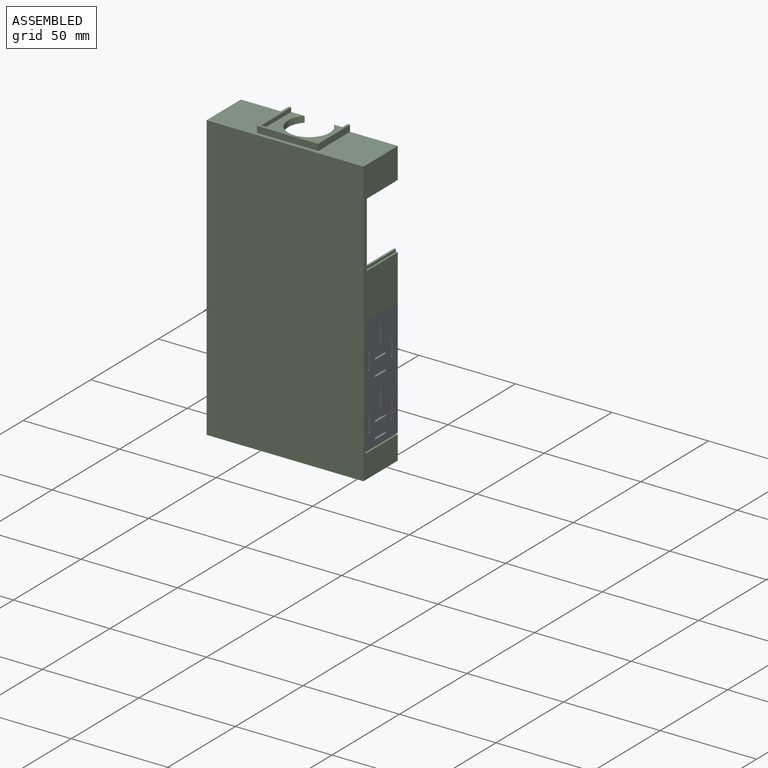
[diagram: assembled view]
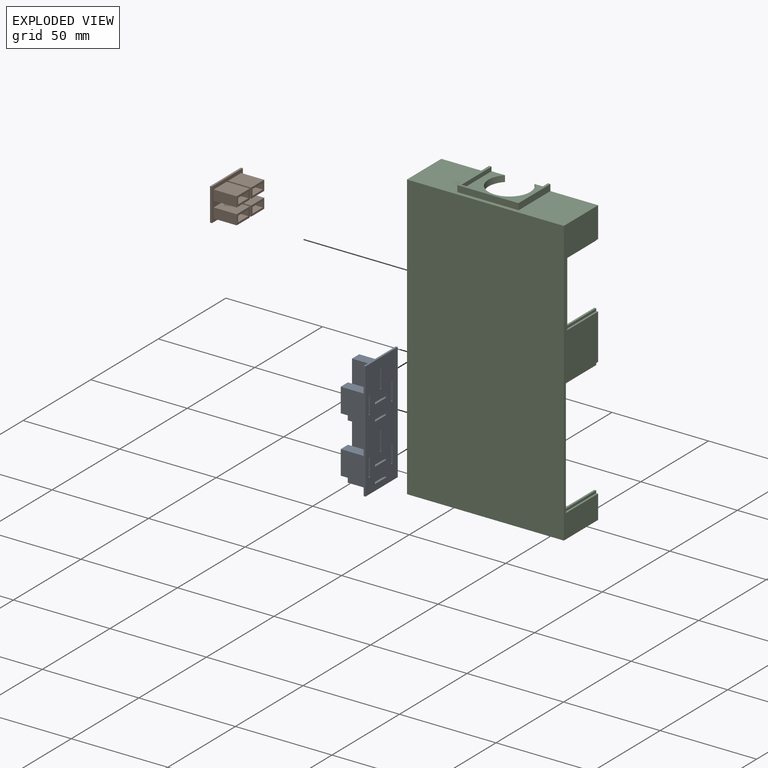
[diagram: exploded view]
GUIDED TOUR — MATED ASSEMBLY (Onshape document 6045e04a73274c1d2f5a1c67, AutoMate assembly 6045e04a73274c1d2f5a1c67_82855e615fc57292569aa869_5702accd36fd1a1ea6442523_default)

This assembly has 3 components, labeled P0..P2 below (a component is one placed occurrence of a part; the same part can appear more than once), held together by 4 mates. A mate is a constraint between two components; its type names the relative motion it leaves free:
  PLANAR — leaves sliding in the plane through the listed point (normal = the listed direction) and rotation about that normal free.
Axis/direction vectors are unit vectors and 'through' points are millimeter coordinates, both in the assembly's world frame.

MATES
  1. PLANAR "Planar 7": P1 <-> P2, direction (1.000, 0.000, 0.000) through (-189.74, -27.72, 78.71) mm
  2. PLANAR "Planar 6": P0 <-> P2, direction (0.000, 0.000, 1.000) through (-109.98, -28.23, 45.69) mm
  3. PLANAR "Planar 5": P0 <-> P2, direction (-1.000, 0.000, 0.000) through (-110.49, -26.33, 42.65) mm
  4. PLANAR "Planar 8": P1 <-> P2, direction (0.000, 0.000, 1.000) through (-190.24, -27.72, 87.16) mm

ASSEMBLY ORDER
  1. P1 — the base component [order verified]
  2. P0 [order verified]
  3. P2 [order verified]
Order-tag legend:
  [order verified] — this step's position reverses a verified removal order: the component was checked to insert without passing through the ones already placed.

Of the 3 components, 3 carry the full construction recipe — the FeatureScript program that regenerates the part's solid from scratch; the rest are supplied as boundary geometry only.
Each toured component is shown spotlighted twice — in the assembled view, then in the exploded view, where a leader line traces a displaced component back to its assembled socket (saturated green if recipe-attached, orange if geometry-only; every other component desaturated gray) — followed by its recipe or geometry summary and the mates that hold it.
NOTE — document 2 of 2 of this assembly tour. The two overview renders and the header above are repeated from document 1; the component sections below continue where the previous document stopped.
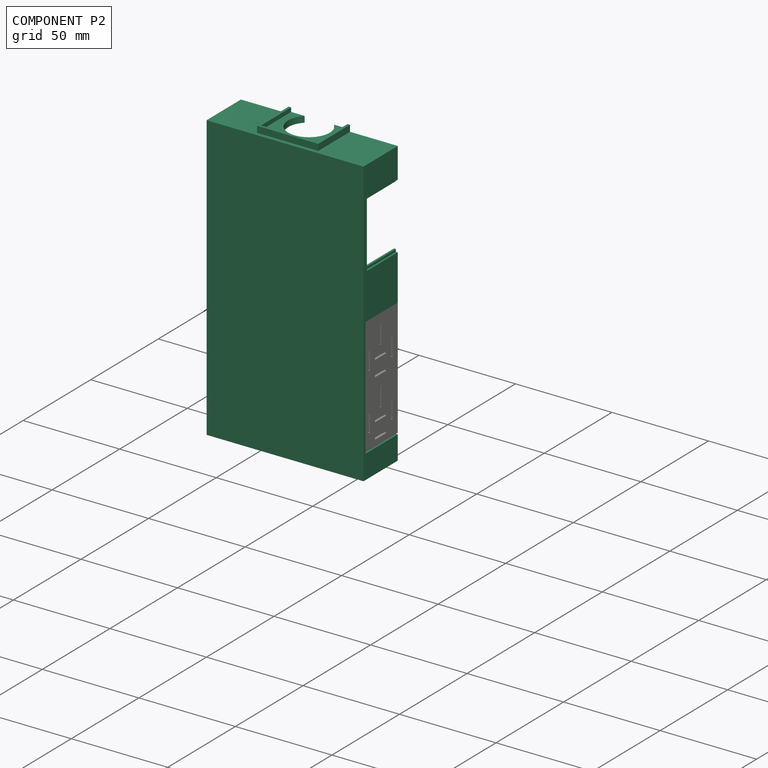
[diagram: component P2 — assembled]
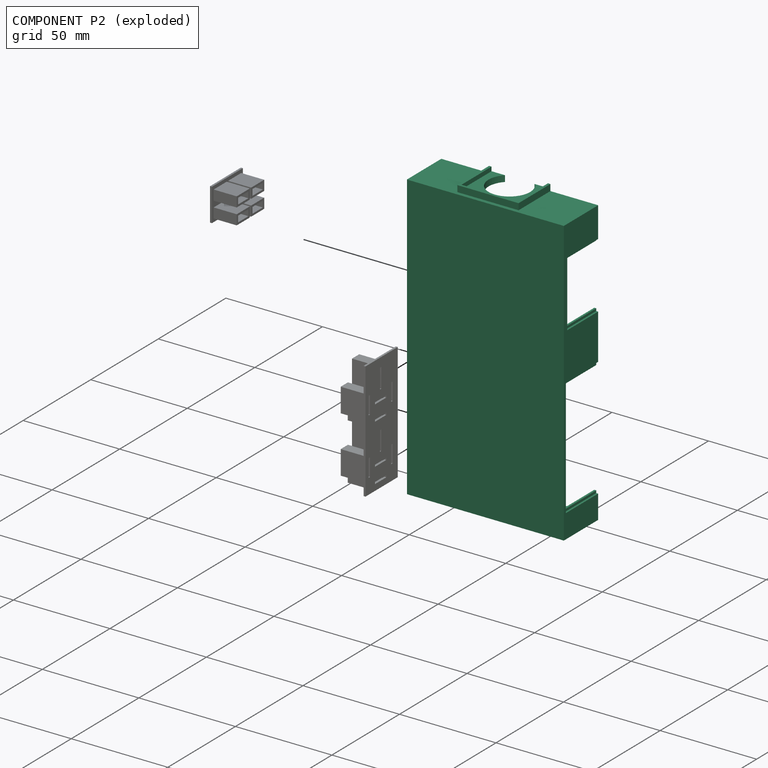
[diagram: component P2 — exploded]
COMPONENT P2 — recipe-attached (CADFS 00127335, mesh-verified: the recipe's output STEP matches this component's geometry to below the mesh-comparison resolution (tessellation chordal tolerance ~0.26 mm)).
Held by: PLANAR mate "Planar 7" to P1; PLANAR mate "Planar 6" to P0; PLANAR mate "Planar 5" to P0; PLANAR mate "Planar 8" to P1.
Construction recipe (FeatureScript — the CAD program that rebuilds this solid; sketch coordinates are in the units given by the * unit suffixes, e.g. mm):

FeatureScript 1511;
import(path : "onshape/std/geometry.fs", version : "1511.0");
import(path : "onshape/std/common.fs", version : "1511.0");
const mm = millimeter;
const VERTEX = EntityType.VERTEX;
const EDGE = EntityType.EDGE;
const FACE = EntityType.FACE;
const BODY = EntityType.BODY;
function v(x, y){return vector(x, y);}
function OD(order){return orderDisambiguation(order);}
function OSD(set){return originalSetDisambiguation(set);}
function TD(topology){return topologyDisambiguation(topology);}
function TDD(query){return trueDependencyDisambiguation(query);}
function sQuery(a, b, c) {return sketchEntityQuery(a, b, c);}

annotation { "Feature Type Name" : "Feature", "Feature Type Description" : "" }
export const myFeature = defineFeature(function(context is Context, id is Id, definition is map)
    precondition{}
    {
        {
            var Q0;
            Q0=qCreatedBy(makeId("Front.planeOp"),FACE);
            var sketch = newSketch(context, id + "F0", { "sketchPlane" : qUnion([Q0])});
            skLineSegment(sketch, "E0", {"start": v(36.47, 73.76) * mm, "end": v(-44.81, 73.76) * mm});
            skLineSegment(sketch, "E1", {"start": v(-44.81, 73.76) * mm, "end": v(-44.81, -40.54) * mm});
            skLineSegment(sketch, "E2", {"start": v(36.47, -40.54) * mm, "end": v(36.47, 73.76) * mm});
            skLineSegment(sketch, "E3", {"start": v(36.47, -40.54) * mm, "end": v(36.47, -73.56) * mm});
            skLineSegment(sketch, "E4", {"start": v(36.47, -73.56) * mm, "end": v(-44.81, -73.56) * mm});
            skLineSegment(sketch, "E5", {"start": v(-44.81, -73.56) * mm, "end": v(-44.81, -40.54) * mm});
            skSolve(sketch);
        }
        {
            var Q0;
            Q0 = qSketchRegion(id + "F0", true);
            extrude(context, id + "F1", {"entities" : qUnion([Q0]), "depth" : 25.4 * mm});
        }
        {
            var Q0;
            Q0=makeQuery(id+"F1.opExtrude","CAP_FACE",FACE,{"disambiguationData":[OSD([sQuery(id+"F0.wireOp",EDGE,"E0"),sQuery(id+"F0.wireOp",EDGE,"E1"),sQuery(id+"F0.wireOp",EDGE,"9LGxaBVT-J4aD-Pj7p-0tie-yeeoXnwk5BCI"),sQuery(id+"F0.wireOp",EDGE,"E2")])],"isStart":true});
            var sketch = newSketch(context, id + "F2", { "sketchPlane" : qUnion([Q0])});
            skLineSegment(sketch, "E6", {"start": v(-34.44, 71.73) * mm, "end": v(-34.44, -71.53) * mm});
            skLineSegment(sketch, "E7", {"start": v(-34.44, -71.53) * mm, "end": v(42.78, -71.53) * mm});
            skLineSegment(sketch, "E8", {"start": v(42.78, -71.53) * mm, "end": v(42.78, 71.73) * mm});
            skLineSegment(sketch, "E9", {"start": v(42.78, 71.73) * mm, "end": v(-34.44, 71.73) * mm});
            skSolve(sketch);
        }
        {
            var Q0;
            Q0 = qSketchRegion(id + "F2", true);
            extrude(context, id + "F3", {"entities" : qUnion([Q0]), "operationType" : NewBodyOperationType.REMOVE, "oppositeDirection" : true, "depth" : 24.13 * mm});
        }
        {
            var Q0;
            Q0=makeQuery(id+"F1.opExtrude","SWEPT_FACE",FACE,{"disambiguationData":[OSD([sQuery(id+"F0.wireOp",EDGE,"E2")])]});
            var sketch = newSketch(context, id + "F4", { "sketchPlane" : qUnion([Q0])});
            skLineSegment(sketch, "E10", {"start": v(-25.4, 20.55) * mm, "end": v(-25.4, -0.03) * mm});
            skLineSegment(sketch, "E11", {"start": v(-13.14, -8) * mm, "end": v(-13.14, -14.85) * mm});
            skLineSegment(sketch, "E12", {"start": v(-13.14, -14.85) * mm, "end": v(-12.26, -14.85) * mm});
            skLineSegment(sketch, "E13", {"start": v(-12.26, -14.85) * mm, "end": v(-12.26, -8) * mm});
            skLineSegment(sketch, "E14", {"start": v(-12.26, -8) * mm, "end": v(-13.14, -8) * mm});
            skLineSegment(sketch, "E15", {"start": v(-16.13, -19.42) * mm, "end": v(-16.13, -20.31) * mm});
            skLineSegment(sketch, "E16", {"start": v(-16.13, -20.31) * mm, "end": v(-9.27, -20.31) * mm});
            skLineSegment(sketch, "E17", {"start": v(-9.27, -20.31) * mm, "end": v(-9.27, -19.42) * mm});
            skLineSegment(sketch, "E18", {"start": v(-9.27, -19.42) * mm, "end": v(-16.13, -19.42) * mm});
            skLineSegment(sketch, "E19", {"start": v(-16.13, -27.42) * mm, "end": v(-16.13, -28.31) * mm});
            skLineSegment(sketch, "E20", {"start": v(-16.13, -28.31) * mm, "end": v(-9.27, -28.31) * mm});
            skLineSegment(sketch, "E21", {"start": v(-9.27, -28.31) * mm, "end": v(-9.27, -27.42) * mm});
            skLineSegment(sketch, "E22", {"start": v(-9.27, -27.42) * mm, "end": v(-16.13, -27.42) * mm});
            skLineSegment(sketch, "E23", {"start": v(-21.46, -16.06) * mm, "end": v(-21.46, -22.91) * mm});
            skLineSegment(sketch, "E24", {"start": v(-21.46, -22.91) * mm, "end": v(-20.57, -22.91) * mm});
            skLineSegment(sketch, "E25", {"start": v(-20.57, -22.91) * mm, "end": v(-20.57, -16.06) * mm});
            skLineSegment(sketch, "E26", {"start": v(-20.57, -16.06) * mm, "end": v(-21.46, -16.06) * mm});
            skLineSegment(sketch, "E27", {"start": v(-4.83, -16.06) * mm, "end": v(-4.83, -22.91) * mm});
            skLineSegment(sketch, "E28", {"start": v(-4.83, -22.91) * mm, "end": v(-3.94, -22.91) * mm});
            skLineSegment(sketch, "E29", {"start": v(-3.94, -22.91) * mm, "end": v(-3.94, -16.06) * mm});
            skLineSegment(sketch, "E30", {"start": v(-3.94, -16.06) * mm, "end": v(-4.83, -16.06) * mm});
            skSolve(sketch);
        }
        {
            var Q0;
            Q0 = qSketchRegion(id + "F4", true);
            extrude(context, id + "F5", {"entities" : qUnion([Q0]), "operationType" : NewBodyOperationType.REMOVE, "endBound" : BoundingType.THROUGH_ALL, "oppositeDirection" : true, "depth" : 25.4 * mm});
        }
        {
            var Q0;
            Q0=makeQuery(id+"F1.opExtrude","SWEPT_FACE",FACE,{"disambiguationData":[OSD([sQuery(id+"F0.wireOp",EDGE,"E2")])]});
            var sketch = newSketch(context, id + "F6", { "sketchPlane" : qUnion([Q0])});
            skLineSegment(sketch, "E31", {"start": v(-25.4, 20.55) * mm, "end": v(-25.4, -0.03) * mm});
            skLineSegment(sketch, "E32", {"start": v(-19.94, 28.85) * mm, "end": v(-19.94, 28.17) * mm});
            skLineSegment(sketch, "E33", {"start": v(-19.94, 28.17) * mm, "end": v(-14.94, 28.17) * mm});
            skLineSegment(sketch, "E34", {"start": v(-14.94, 28.17) * mm, "end": v(-14.94, 28.85) * mm});
            skLineSegment(sketch, "E35", {"start": v(-14.94, 28.85) * mm, "end": v(-19.94, 28.85) * mm});
            skLineSegment(sketch, "E36", {"start": v(-10.46, 28.85) * mm, "end": v(-5.46, 28.85) * mm});
            skLineSegment(sketch, "E37", {"start": v(-5.46, 28.85) * mm, "end": v(-5.46, 28.17) * mm});
            skLineSegment(sketch, "E38", {"start": v(-5.46, 28.17) * mm, "end": v(-10.46, 28.17) * mm});
            skLineSegment(sketch, "E39", {"start": v(-10.46, 28.17) * mm, "end": v(-10.46, 28.85) * mm});
            skLineSegment(sketch, "E40", {"start": v(-19.94, 37.16) * mm, "end": v(-19.94, 36.47) * mm});
            skLineSegment(sketch, "E41", {"start": v(-19.94, 36.47) * mm, "end": v(-14.94, 36.47) * mm});
            skLineSegment(sketch, "E42", {"start": v(-14.94, 36.47) * mm, "end": v(-14.94, 37.16) * mm});
            skLineSegment(sketch, "E43", {"start": v(-14.94, 37.16) * mm, "end": v(-19.94, 37.16) * mm});
            skLineSegment(sketch, "E44", {"start": v(-10.46, 37.16) * mm, "end": v(-10.46, 36.47) * mm});
            skLineSegment(sketch, "E45", {"start": v(-10.46, 36.47) * mm, "end": v(-5.46, 36.47) * mm});
            skLineSegment(sketch, "E46", {"start": v(-5.46, 36.47) * mm, "end": v(-5.46, 37.16) * mm});
            skLineSegment(sketch, "E47", {"start": v(-5.46, 37.16) * mm, "end": v(-10.46, 37.16) * mm});
            skLineSegment(sketch, "E48", {"start": v(-19.94, 45.46) * mm, "end": v(-19.94, 44.78) * mm});
            skLineSegment(sketch, "E49", {"start": v(-19.94, 44.78) * mm, "end": v(-14.94, 44.78) * mm});
            skLineSegment(sketch, "E50", {"start": v(-14.94, 44.78) * mm, "end": v(-14.94, 45.46) * mm});
            skLineSegment(sketch, "E51", {"start": v(-14.94, 45.46) * mm, "end": v(-19.94, 45.46) * mm});
            skLineSegment(sketch, "E52", {"start": v(-10.46, 45.46) * mm, "end": v(-10.46, 44.78) * mm});
            skLineSegment(sketch, "E53", {"start": v(-10.46, 44.78) * mm, "end": v(-5.46, 44.78) * mm});
            skLineSegment(sketch, "E54", {"start": v(-5.46, 44.78) * mm, "end": v(-5.46, 45.46) * mm});
            skLineSegment(sketch, "E55", {"start": v(-5.46, 45.46) * mm, "end": v(-10.46, 45.46) * mm});
            skLineSegment(sketch, "E56", {"start": v(-19.94, 53.77) * mm, "end": v(-19.94, 53.08) * mm});
            skLineSegment(sketch, "E57", {"start": v(-19.94, 53.08) * mm, "end": v(-14.94, 53.08) * mm});
            skLineSegment(sketch, "E58", {"start": v(-14.94, 53.08) * mm, "end": v(-14.94, 53.77) * mm});
            skLineSegment(sketch, "E59", {"start": v(-14.94, 53.77) * mm, "end": v(-19.94, 53.77) * mm});
            skLineSegment(sketch, "E60", {"start": v(-10.46, 53.77) * mm, "end": v(-10.46, 53.08) * mm});
            skLineSegment(sketch, "E61", {"start": v(-10.46, 53.08) * mm, "end": v(-5.46, 53.08) * mm});
            skLineSegment(sketch, "E62", {"start": v(-5.46, 53.08) * mm, "end": v(-5.46, 53.77) * mm});
            skLineSegment(sketch, "E63", {"start": v(-5.46, 53.77) * mm, "end": v(-10.46, 53.77) * mm});
            skSolve(sketch);
        }
        {
            var Q0;
            Q0 = qSketchRegion(id + "F6", true);
            extrude(context, id + "F7", {"entities" : qUnion([Q0]), "operationType" : NewBodyOperationType.REMOVE, "endBound" : BoundingType.THROUGH_ALL, "oppositeDirection" : true, "depth" : 25.4 * mm});
        }
        {
            var Q0;
            Q0=makeQuery(id+"F1.opExtrude","SWEPT_FACE",FACE,{"disambiguationData":[OSD([sQuery(id+"F0.wireOp",EDGE,"E1")])]});
            var sketch = newSketch(context, id + "F8", { "sketchPlane" : qUnion([Q0])});
            skLineSegment(sketch, "E64", {"start": v(5.46, 53.77) * mm, "end": v(5.46, 53.08) * mm});
            skLineSegment(sketch, "E65", {"start": v(5.46, 53.08) * mm, "end": v(10.46, 53.08) * mm});
            skLineSegment(sketch, "E66", {"start": v(10.46, 53.08) * mm, "end": v(10.46, 53.77) * mm});
            skLineSegment(sketch, "E67", {"start": v(10.46, 53.77) * mm, "end": v(5.46, 53.77) * mm});
            skLineSegment(sketch, "E68", {"start": v(14.94, 53.77) * mm, "end": v(14.94, 53.08) * mm});
            skLineSegment(sketch, "E69", {"start": v(14.94, 53.08) * mm, "end": v(19.94, 53.08) * mm});
            skLineSegment(sketch, "E70", {"start": v(19.94, 53.08) * mm, "end": v(19.94, 53.77) * mm});
            skLineSegment(sketch, "E71", {"start": v(19.94, 53.77) * mm, "end": v(14.94, 53.77) * mm});
            skLineSegment(sketch, "E72", {"start": v(5.46, 45.46) * mm, "end": v(5.46, 44.78) * mm});
            skLineSegment(sketch, "E73", {"start": v(5.46, 44.78) * mm, "end": v(10.46, 44.78) * mm});
            skLineSegment(sketch, "E74", {"start": v(10.46, 44.78) * mm, "end": v(10.46, 45.46) * mm});
            skLineSegment(sketch, "E75", {"start": v(10.46, 45.46) * mm, "end": v(5.46, 45.46) * mm});
            skLineSegment(sketch, "E76", {"start": v(14.94, 45.46) * mm, "end": v(14.94, 44.78) * mm});
            skLineSegment(sketch, "E77", {"start": v(14.94, 44.78) * mm, "end": v(19.94, 44.78) * mm});
            skLineSegment(sketch, "E78", {"start": v(19.94, 44.78) * mm, "end": v(19.94, 45.46) * mm});
            skLineSegment(sketch, "E79", {"start": v(19.94, 45.46) * mm, "end": v(14.94, 45.46) * mm});
            skSolve(sketch);
        }
        {
            var Q0;
            Q0 = qSketchRegion(id + "F8", true);
            extrude(context, id + "F9", {"entities" : qUnion([Q0]), "operationType" : NewBodyOperationType.ADD, "oppositeDirection" : true, "depth" : 2.03 * mm});
        }
        {
            var Q0;
            Q0=makeQuery(id+"F1.opExtrude","SWEPT_FACE",FACE,{"disambiguationData":[OSD([sQuery(id+"F0.wireOp",EDGE,"E2")])]});
            var sketch = newSketch(context, id + "F10", { "sketchPlane" : qUnion([Q0])});
            skLineSegment(sketch, "E80", {"start": v(-19.43, -15.67) * mm, "end": v(-22.6, -15.67) * mm});
            skLineSegment(sketch, "E81", {"start": v(-22.6, -15.67) * mm, "end": v(-22.6, -23.3) * mm});
            skLineSegment(sketch, "E82", {"start": v(-22.6, -23.3) * mm, "end": v(-19.43, -23.3) * mm});
            skLineSegment(sketch, "E83", {"start": v(-19.43, -23.3) * mm, "end": v(-19.43, -15.67) * mm});
            skLineSegment(sketch, "E84", {"start": v(-16.51, -18.28) * mm, "end": v(-16.51, -21.45) * mm});
            skLineSegment(sketch, "E85", {"start": v(-16.51, -21.45) * mm, "end": v(-8.9, -21.45) * mm});
            skLineSegment(sketch, "E86", {"start": v(-8.9, -21.45) * mm, "end": v(-8.9, -18.28) * mm});
            skLineSegment(sketch, "E87", {"start": v(-8.9, -18.28) * mm, "end": v(-16.51, -18.28) * mm});
            skLineSegment(sketch, "E88", {"start": v(-2.8, -15.67) * mm, "end": v(-5.97, -15.67) * mm});
            skLineSegment(sketch, "E89", {"start": v(-5.97, -15.67) * mm, "end": v(-5.97, -23.3) * mm});
            skLineSegment(sketch, "E90", {"start": v(-5.97, -23.3) * mm, "end": v(-2.8, -23.3) * mm});
            skLineSegment(sketch, "E91", {"start": v(-2.8, -23.3) * mm, "end": v(-2.8, -15.67) * mm});
            skLineSegment(sketch, "E92", {"start": v(-11.11, -7.61) * mm, "end": v(-14.29, -7.61) * mm});
            skLineSegment(sketch, "E93", {"start": v(-14.29, -7.61) * mm, "end": v(-14.29, -15.23) * mm});
            skLineSegment(sketch, "E94", {"start": v(-14.29, -15.23) * mm, "end": v(-11.11, -15.23) * mm});
            skLineSegment(sketch, "E95", {"start": v(-11.11, -15.23) * mm, "end": v(-11.11, -7.61) * mm});
            skLineSegment(sketch, "E96", {"start": v(-16.5, -26.28) * mm, "end": v(-16.5, -29.45) * mm});
            skLineSegment(sketch, "E97", {"start": v(-16.5, -29.45) * mm, "end": v(-8.89, -29.45) * mm});
            skLineSegment(sketch, "E98", {"start": v(-8.89, -29.45) * mm, "end": v(-8.89, -26.28) * mm});
            skLineSegment(sketch, "E99", {"start": v(-8.89, -26.28) * mm, "end": v(-16.5, -26.28) * mm});
            skLineSegment(sketch, "E100", {"start": v(-10.1, -6.6) * mm, "end": v(-15.3, -6.6) * mm});
            skLineSegment(sketch, "E101", {"start": v(-15.3, -6.6) * mm, "end": v(-15.3, -16.25) * mm});
            skLineSegment(sketch, "E102", {"start": v(-15.3, -16.25) * mm, "end": v(-10.1, -16.25) * mm});
            skLineSegment(sketch, "E103", {"start": v(-10.1, -16.25) * mm, "end": v(-10.1, -6.6) * mm});
            skLineSegment(sketch, "E104", {"start": v(-23.62, -14.66) * mm, "end": v(-23.62, -24.31) * mm});
            skLineSegment(sketch, "E105", {"start": v(-23.62, -24.31) * mm, "end": v(-18.41, -24.31) * mm});
            skLineSegment(sketch, "E106", {"start": v(-18.42, -24.31) * mm, "end": v(-18.42, -14.66) * mm});
            skLineSegment(sketch, "E107", {"start": v(-18.42, -14.66) * mm, "end": v(-23.62, -14.66) * mm});
            skLineSegment(sketch, "E108", {"start": v(-1.78, -14.66) * mm, "end": v(-6.98, -14.66) * mm});
            skLineSegment(sketch, "E109", {"start": v(-6.98, -14.66) * mm, "end": v(-6.98, -24.31) * mm});
            skLineSegment(sketch, "E110", {"start": v(-6.98, -24.31) * mm, "end": v(-1.78, -24.31) * mm});
            skLineSegment(sketch, "E111", {"start": v(-1.78, -24.31) * mm, "end": v(-1.78, -14.66) * mm});
            skLineSegment(sketch, "E112", {"start": v(-17.53, -17.26) * mm, "end": v(-17.53, -22.47) * mm});
            skLineSegment(sketch, "E113", {"start": v(-17.53, -22.47) * mm, "end": v(-7.87, -22.47) * mm});
            skLineSegment(sketch, "E114", {"start": v(-7.87, -22.47) * mm, "end": v(-7.87, -17.26) * mm});
            skLineSegment(sketch, "E115", {"start": v(-7.87, -17.26) * mm, "end": v(-17.53, -17.26) * mm});
            skLineSegment(sketch, "E116", {"start": v(-17.53, -25.26) * mm, "end": v(-17.53, -30.47) * mm});
            skLineSegment(sketch, "E117", {"start": v(-17.53, -30.47) * mm, "end": v(-8.25, -30.47) * mm});
            skLineSegment(sketch, "E118", {"start": v(-8.25, -30.47) * mm, "end": v(-8.25, -25.26) * mm});
            skLineSegment(sketch, "E119", {"start": v(-8.25, -25.26) * mm, "end": v(-17.53, -25.26) * mm});
            skSolve(sketch);
        }
        {
            var Q0;
            Q0 = qSketchRegion(id + "F10", true);
            extrude(context, id + "F11", {"entities" : qUnion([Q0]), "operationType" : NewBodyOperationType.ADD, "oppositeDirection" : true, "depth" : 12.95 * mm});
        }
        {
            var Q0;
            Q0=makeQuery(id+"F1.opExtrude","SWEPT_FACE",FACE,{"disambiguationData":[OSD([sQuery(id+"F0.wireOp",EDGE,"E2")])]});
            var sketch = newSketch(context, id + "F12", { "sketchPlane" : qUnion([Q0])});
            skLineSegment(sketch, "E120", {"start": v(-21.25, 30.1) * mm, "end": v(-21.25, 26.92) * mm});
            skLineSegment(sketch, "E121", {"start": v(-21.25, 26.92) * mm, "end": v(-13.63, 26.92) * mm});
            skLineSegment(sketch, "E122", {"start": v(-13.63, 26.92) * mm, "end": v(-13.63, 30.1) * mm});
            skLineSegment(sketch, "E123", {"start": v(-13.63, 30.1) * mm, "end": v(-21.25, 30.1) * mm});
            skLineSegment(sketch, "E124", {"start": v(-22, 30.86) * mm, "end": v(-22, 26.16) * mm});
            skLineSegment(sketch, "E125", {"start": v(-22, 26.16) * mm, "end": v(-12.87, 26.16) * mm});
            skLineSegment(sketch, "E126", {"start": v(-12.87, 26.16) * mm, "end": v(-12.87, 30.86) * mm});
            skLineSegment(sketch, "E127", {"start": v(-12.87, 30.86) * mm, "end": v(-22, 30.86) * mm});
            skLineSegment(sketch, "E128", {"start": v(-11.77, 30.1) * mm, "end": v(-11.77, 26.92) * mm});
            skLineSegment(sketch, "E129", {"start": v(-11.77, 26.92) * mm, "end": v(-4.15, 26.92) * mm});
            skLineSegment(sketch, "E130", {"start": v(-4.15, 26.92) * mm, "end": v(-4.15, 30.1) * mm});
            skLineSegment(sketch, "E131", {"start": v(-4.15, 30.1) * mm, "end": v(-11.77, 30.1) * mm});
            skLineSegment(sketch, "E132", {"start": v(-3.4, 30.86) * mm, "end": v(-12.53, 30.86) * mm});
            skLineSegment(sketch, "E133", {"start": v(-12.53, 30.86) * mm, "end": v(-12.53, 26.16) * mm});
            skLineSegment(sketch, "E134", {"start": v(-12.53, 26.16) * mm, "end": v(-3.4, 26.16) * mm});
            skLineSegment(sketch, "E135", {"start": v(-3.4, 26.16) * mm, "end": v(-3.4, 30.86) * mm});
            skLineSegment(sketch, "E136", {"start": v(-21.25, 38.4) * mm, "end": v(-21.25, 35.23) * mm});
            skLineSegment(sketch, "E137", {"start": v(-21.25, 35.23) * mm, "end": v(-13.63, 35.23) * mm});
            skLineSegment(sketch, "E138", {"start": v(-13.63, 35.23) * mm, "end": v(-13.63, 38.4) * mm});
            skLineSegment(sketch, "E139", {"start": v(-13.63, 38.4) * mm, "end": v(-21.25, 38.4) * mm});
            skLineSegment(sketch, "E140", {"start": v(-22, 39.17) * mm, "end": v(-22, 34.47) * mm});
            skLineSegment(sketch, "E141", {"start": v(-22, 34.47) * mm, "end": v(-12.87, 34.47) * mm});
            skLineSegment(sketch, "E142", {"start": v(-12.87, 34.47) * mm, "end": v(-12.87, 39.17) * mm});
            skLineSegment(sketch, "E143", {"start": v(-12.87, 39.17) * mm, "end": v(-22, 39.17) * mm});
            skLineSegment(sketch, "E144", {"start": v(-11.77, 38.4) * mm, "end": v(-11.77, 35.23) * mm});
            skLineSegment(sketch, "E145", {"start": v(-11.77, 35.23) * mm, "end": v(-4.15, 35.23) * mm});
            skLineSegment(sketch, "E146", {"start": v(-4.15, 35.23) * mm, "end": v(-4.15, 38.4) * mm});
            skLineSegment(sketch, "E147", {"start": v(-4.15, 38.4) * mm, "end": v(-11.77, 38.4) * mm});
            skLineSegment(sketch, "E148", {"start": v(-12.53, 39.17) * mm, "end": v(-12.53, 34.47) * mm});
            skLineSegment(sketch, "E149", {"start": v(-12.53, 39.17) * mm, "end": v(-3.4, 39.17) * mm});
            skLineSegment(sketch, "E150", {"start": v(-3.4, 39.17) * mm, "end": v(-3.4, 34.47) * mm});
            skLineSegment(sketch, "E151", {"start": v(-3.4, 34.47) * mm, "end": v(-12.53, 34.47) * mm});
            skLineSegment(sketch, "E152", {"start": v(-21.25, 46.7) * mm, "end": v(-21.25, 43.53) * mm});
            skLineSegment(sketch, "E153", {"start": v(-21.25, 43.53) * mm, "end": v(-13.63, 43.53) * mm});
            skLineSegment(sketch, "E154", {"start": v(-13.63, 43.53) * mm, "end": v(-13.63, 46.7) * mm});
            skLineSegment(sketch, "E155", {"start": v(-13.63, 46.7) * mm, "end": v(-21.25, 46.7) * mm});
            skLineSegment(sketch, "E156", {"start": v(-22, 47.47) * mm, "end": v(-22, 42.77) * mm});
            skLineSegment(sketch, "E157", {"start": v(-22, 42.77) * mm, "end": v(-12.87, 42.77) * mm});
            skLineSegment(sketch, "E158", {"start": v(-12.87, 42.77) * mm, "end": v(-12.87, 47.47) * mm});
            skLineSegment(sketch, "E159", {"start": v(-12.87, 47.47) * mm, "end": v(-22, 47.47) * mm});
            skLineSegment(sketch, "E160", {"start": v(-11.77, 43.53) * mm, "end": v(-4.15, 43.53) * mm});
            skLineSegment(sketch, "E161", {"start": v(-4.15, 46.7) * mm, "end": v(-11.77, 46.7) * mm});
            skLineSegment(sketch, "E162", {"start": v(-11.77, 46.7) * mm, "end": v(-11.77, 43.53) * mm});
            skLineSegment(sketch, "E163", {"start": v(-4.15, 46.7) * mm, "end": v(-4.15, 43.53) * mm});
            skLineSegment(sketch, "E164", {"start": v(-12.53, 47.47) * mm, "end": v(-12.53, 42.77) * mm});
            skLineSegment(sketch, "E165", {"start": v(-12.53, 42.77) * mm, "end": v(-3.4, 42.77) * mm});
            skLineSegment(sketch, "E166", {"start": v(-3.4, 42.77) * mm, "end": v(-3.4, 47.47) * mm});
            skLineSegment(sketch, "E167", {"start": v(-3.4, 47.47) * mm, "end": v(-12.53, 47.47) * mm});
            skLineSegment(sketch, "E168", {"start": v(-21.25, 55.01) * mm, "end": v(-21.25, 51.84) * mm});
            skLineSegment(sketch, "E169", {"start": v(-21.25, 51.84) * mm, "end": v(-13.63, 51.84) * mm});
            skLineSegment(sketch, "E170", {"start": v(-13.63, 51.84) * mm, "end": v(-13.63, 55.01) * mm});
            skLineSegment(sketch, "E171", {"start": v(-13.63, 55.01) * mm, "end": v(-21.25, 55.01) * mm});
            skLineSegment(sketch, "E172", {"start": v(-11.77, 55.01) * mm, "end": v(-11.77, 51.84) * mm});
            skLineSegment(sketch, "E173", {"start": v(-11.77, 51.84) * mm, "end": v(-4.15, 51.84) * mm});
            skLineSegment(sketch, "E174", {"start": v(-4.15, 51.84) * mm, "end": v(-4.15, 55.01) * mm});
            skLineSegment(sketch, "E175", {"start": v(-4.15, 55.01) * mm, "end": v(-11.77, 55.01) * mm});
            skLineSegment(sketch, "E176", {"start": v(-22, 55.78) * mm, "end": v(-22, 51.08) * mm});
            skLineSegment(sketch, "E177", {"start": v(-22, 51.08) * mm, "end": v(-12.87, 51.08) * mm});
            skLineSegment(sketch, "E178", {"start": v(-12.87, 51.08) * mm, "end": v(-12.87, 55.78) * mm});
            skLineSegment(sketch, "E179", {"start": v(-12.87, 55.78) * mm, "end": v(-22, 55.78) * mm});
            skLineSegment(sketch, "E180", {"start": v(-12.53, 55.78) * mm, "end": v(-12.53, 51.08) * mm});
            skLineSegment(sketch, "E181", {"start": v(-12.53, 51.08) * mm, "end": v(-3.4, 51.08) * mm});
            skLineSegment(sketch, "E182", {"start": v(-3.4, 51.08) * mm, "end": v(-3.4, 55.78) * mm});
            skLineSegment(sketch, "E183", {"start": v(-3.4, 55.78) * mm, "end": v(-12.53, 55.78) * mm});
            skSolve(sketch);
        }
        {
            var Q0;
            Q0 = qSketchRegion(id + "F12", true);
            extrude(context, id + "F13", {"entities" : qUnion([Q0]), "operationType" : NewBodyOperationType.ADD, "oppositeDirection" : true, "depth" : 12.95 * mm});
        }
        {
            var Q0;
            Q0=makeQuery(id+"F1.opExtrude","SWEPT_FACE",FACE,{"disambiguationData":[OSD([sQuery(id+"F0.wireOp",EDGE,"E2"),sQuery(id+"F0.wireOp",EDGE,"E3")])]});
            var sketch = newSketch(context, id + "F14", { "sketchPlane" : qUnion([Q0])});
            skLineSegment(sketch, "E184", {"start": v(-13.14, -37.16) * mm, "end": v(-12.26, -37.16) * mm});
            skLineSegment(sketch, "E185", {"start": v(-13.14, -37.16) * mm, "end": v(-13.14, -44.02) * mm});
            skLineSegment(sketch, "E186", {"start": v(-13.14, -44.02) * mm, "end": v(-12.26, -44.02) * mm});
            skLineSegment(sketch, "E187", {"start": v(-12.26, -44.02) * mm, "end": v(-12.26, -37.16) * mm});
            skLineSegment(sketch, "E188", {"start": v(-16.13, -48.59) * mm, "end": v(-16.13, -49.48) * mm});
            skLineSegment(sketch, "E189", {"start": v(-16.13, -49.48) * mm, "end": v(-9.27, -49.48) * mm});
            skLineSegment(sketch, "E190", {"start": v(-9.27, -49.48) * mm, "end": v(-9.27, -48.59) * mm});
            skLineSegment(sketch, "E191", {"start": v(-9.27, -48.59) * mm, "end": v(-16.13, -48.59) * mm});
            skLineSegment(sketch, "E192", {"start": v(-16.13, -56.59) * mm, "end": v(-16.13, -57.48) * mm});
            skLineSegment(sketch, "E193", {"start": v(-16.13, -57.48) * mm, "end": v(-9.27, -57.48) * mm});
            skLineSegment(sketch, "E194", {"start": v(-9.27, -57.48) * mm, "end": v(-9.27, -56.59) * mm});
            skLineSegment(sketch, "E195", {"start": v(-9.27, -56.59) * mm, "end": v(-16.13, -56.59) * mm});
            skLineSegment(sketch, "E196", {"start": v(-21.46, -45.29) * mm, "end": v(-21.46, -52.14) * mm});
            skLineSegment(sketch, "E197", {"start": v(-21.46, -52.14) * mm, "end": v(-20.57, -52.14) * mm});
            skLineSegment(sketch, "E198", {"start": v(-20.57, -52.14) * mm, "end": v(-20.57, -45.29) * mm});
            skLineSegment(sketch, "E199", {"start": v(-20.57, -45.29) * mm, "end": v(-21.46, -45.29) * mm});
            skLineSegment(sketch, "E200", {"start": v(-4.83, -45.29) * mm, "end": v(-4.83, -52.14) * mm});
            skLineSegment(sketch, "E201", {"start": v(-4.83, -52.14) * mm, "end": v(-3.94, -52.14) * mm});
            skLineSegment(sketch, "E202", {"start": v(-3.94, -52.14) * mm, "end": v(-3.94, -45.29) * mm});
            skLineSegment(sketch, "E203", {"start": v(-3.94, -45.29) * mm, "end": v(-4.83, -45.29) * mm});
            skSolve(sketch);
        }
        {
            var Q0;
            Q0 = qSketchRegion(id + "F14", true);
            extrude(context, id + "F15", {"entities" : qUnion([Q0]), "operationType" : NewBodyOperationType.REMOVE, "endBound" : BoundingType.THROUGH_ALL, "oppositeDirection" : true, "depth" : 25.4 * mm});
        }
        {
            var Q0;
            Q0=makeQuery(id+"F9.boolean.opBoolean","MERGE",FACE,{"derivedFrom":[makeQuery(id+"F1.opExtrude","SWEPT_FACE",FACE,{"disambiguationData":[OSD([sQuery(id+"F0.wireOp",EDGE,"E1"),sQuery(id+"F0.wireOp",EDGE,"E5")])]}),makeQuery(id+"F9.opExtrude","CAP_FACE",FACE,{"disambiguationData":[OSD([sQuery(id+"F8.wireOp",EDGE,"E64"),sQuery(id+"F8.wireOp",EDGE,"E65"),sQuery(id+"F8.wireOp",EDGE,"E66"),sQuery(id+"F8.wireOp",EDGE,"E67")])],"isStart":true}),makeQuery(id+"F9.opExtrude","CAP_FACE",FACE,{"disambiguationData":[OSD([sQuery(id+"F8.wireOp",EDGE,"E68"),sQuery(id+"F8.wireOp",EDGE,"E69"),sQuery(id+"F8.wireOp",EDGE,"E70"),sQuery(id+"F8.wireOp",EDGE,"E71")])],"isStart":true}),makeQuery(id+"F9.opExtrude","CAP_FACE",FACE,{"disambiguationData":[OSD([sQuery(id+"F8.wireOp",EDGE,"E72"),sQuery(id+"F8.wireOp",EDGE,"E73"),sQuery(id+"F8.wireOp",EDGE,"E74"),sQuery(id+"F8.wireOp",EDGE,"E75")])],"isStart":true}),makeQuery(id+"F9.opExtrude","CAP_FACE",FACE,{"disambiguationData":[OSD([sQuery(id+"F8.wireOp",EDGE,"E76"),sQuery(id+"F8.wireOp",EDGE,"E77"),sQuery(id+"F8.wireOp",EDGE,"E78"),sQuery(id+"F8.wireOp",EDGE,"E79")])],"isStart":true})]});
            var sketch = newSketch(context, id + "F16", { "sketchPlane" : qUnion([Q0])});
            skLineSegment(sketch, "E204", {"start": v(11.11, -7.61) * mm, "end": v(11.11, -15.23) * mm});
            skLineSegment(sketch, "E205", {"start": v(11.11, -15.23) * mm, "end": v(14.29, -15.23) * mm});
            skLineSegment(sketch, "E206", {"start": v(14.29, -15.23) * mm, "end": v(14.29, -7.61) * mm});
            skLineSegment(sketch, "E207", {"start": v(14.29, -7.61) * mm, "end": v(11.11, -7.61) * mm});
            skLineSegment(sketch, "E208", {"start": v(5.97, -15.67) * mm, "end": v(2.8, -15.67) * mm});
            skLineSegment(sketch, "E209", {"start": v(2.8, -15.67) * mm, "end": v(2.8, -23.3) * mm});
            skLineSegment(sketch, "E210", {"start": v(2.8, -23.3) * mm, "end": v(5.97, -23.3) * mm});
            skLineSegment(sketch, "E211", {"start": v(5.97, -23.3) * mm, "end": v(5.97, -15.67) * mm});
            skLineSegment(sketch, "E212", {"start": v(8.9, -18.28) * mm, "end": v(8.9, -21.45) * mm});
            skLineSegment(sketch, "E213", {"start": v(8.9, -21.45) * mm, "end": v(16.51, -21.45) * mm});
            skLineSegment(sketch, "E214", {"start": v(16.51, -21.45) * mm, "end": v(16.51, -18.28) * mm});
            skLineSegment(sketch, "E215", {"start": v(16.51, -18.28) * mm, "end": v(8.9, -18.28) * mm});
            skLineSegment(sketch, "E216", {"start": v(19.43, -15.67) * mm, "end": v(19.43, -23.3) * mm});
            skLineSegment(sketch, "E217", {"start": v(19.43, -23.3) * mm, "end": v(22.6, -23.3) * mm});
            skLineSegment(sketch, "E218", {"start": v(22.6, -23.3) * mm, "end": v(22.6, -15.67) * mm});
            skLineSegment(sketch, "E219", {"start": v(22.6, -15.67) * mm, "end": v(19.43, -15.67) * mm});
            skLineSegment(sketch, "E220", {"start": v(8.89, -26.28) * mm, "end": v(8.89, -29.45) * mm});
            skLineSegment(sketch, "E221", {"start": v(8.89, -29.45) * mm, "end": v(16.5, -29.45) * mm});
            skLineSegment(sketch, "E222", {"start": v(16.51, -29.45) * mm, "end": v(16.51, -26.28) * mm});
            skLineSegment(sketch, "E223", {"start": v(16.5, -26.28) * mm, "end": v(8.89, -26.28) * mm});
            skLineSegment(sketch, "E224", {"start": v(6.98, -14.66) * mm, "end": v(1.78, -14.66) * mm});
            skLineSegment(sketch, "E225", {"start": v(1.78, -14.66) * mm, "end": v(1.78, -24.31) * mm});
            skLineSegment(sketch, "E226", {"start": v(1.78, -24.31) * mm, "end": v(6.98, -24.31) * mm});
            skLineSegment(sketch, "E227", {"start": v(6.98, -24.31) * mm, "end": v(6.98, -14.66) * mm});
            skLineSegment(sketch, "E228", {"start": v(7.87, -17.26) * mm, "end": v(7.87, -22.47) * mm});
            skLineSegment(sketch, "E229", {"start": v(7.87, -22.47) * mm, "end": v(17.53, -22.47) * mm});
            skLineSegment(sketch, "E230", {"start": v(17.53, -22.47) * mm, "end": v(17.53, -17.26) * mm});
            skLineSegment(sketch, "E231", {"start": v(17.53, -17.26) * mm, "end": v(7.87, -17.26) * mm});
            skLineSegment(sketch, "E232", {"start": v(18.42, -14.66) * mm, "end": v(18.42, -24.31) * mm});
            skLineSegment(sketch, "E233", {"start": v(18.42, -24.31) * mm, "end": v(23.62, -24.31) * mm});
            skLineSegment(sketch, "E234", {"start": v(23.62, -24.31) * mm, "end": v(23.62, -14.66) * mm});
            skLineSegment(sketch, "E235", {"start": v(23.62, -14.66) * mm, "end": v(18.42, -14.66) * mm});
            skLineSegment(sketch, "E236", {"start": v(10.1, -6.6) * mm, "end": v(10.1, -16.25) * mm});
            skLineSegment(sketch, "E237", {"start": v(10.1, -16.25) * mm, "end": v(15.3, -16.25) * mm});
            skLineSegment(sketch, "E238", {"start": v(15.3, -16.25) * mm, "end": v(15.3, -6.6) * mm});
            skLineSegment(sketch, "E239", {"start": v(15.3, -6.6) * mm, "end": v(10.1, -6.6) * mm});
            skLineSegment(sketch, "E240", {"start": v(7.87, -25.26) * mm, "end": v(7.87, -30.47) * mm});
            skLineSegment(sketch, "E241", {"start": v(7.87, -30.47) * mm, "end": v(17.53, -30.47) * mm});
            skLineSegment(sketch, "E242", {"start": v(17.53, -30.47) * mm, "end": v(17.53, -25.26) * mm});
            skLineSegment(sketch, "E243", {"start": v(17.53, -25.26) * mm, "end": v(7.87, -25.26) * mm});
            skLineSegment(sketch, "E244", {"start": v(14.29, -36.78) * mm, "end": v(11.11, -36.78) * mm});
            skLineSegment(sketch, "E245", {"start": v(11.11, -36.78) * mm, "end": v(11.11, -44.4) * mm});
            skLineSegment(sketch, "E246", {"start": v(11.11, -44.4) * mm, "end": v(14.29, -44.4) * mm});
            skLineSegment(sketch, "E247", {"start": v(14.29, -44.4) * mm, "end": v(14.29, -36.78) * mm});
            skLineSegment(sketch, "E248", {"start": v(5.97, -44.9) * mm, "end": v(2.8, -44.9) * mm});
            skLineSegment(sketch, "E249", {"start": v(2.8, -44.9) * mm, "end": v(2.8, -52.52) * mm});
            skLineSegment(sketch, "E250", {"start": v(2.8, -52.52) * mm, "end": v(5.97, -52.52) * mm});
            skLineSegment(sketch, "E251", {"start": v(5.97, -52.52) * mm, "end": v(5.97, -44.9) * mm});
            skLineSegment(sketch, "E252", {"start": v(8.9, -47.44) * mm, "end": v(8.9, -50.62) * mm});
            skLineSegment(sketch, "E253", {"start": v(8.9, -50.62) * mm, "end": v(16.51, -50.62) * mm});
            skLineSegment(sketch, "E254", {"start": v(16.51, -50.62) * mm, "end": v(16.51, -47.44) * mm});
            skLineSegment(sketch, "E255", {"start": v(16.51, -47.44) * mm, "end": v(8.9, -47.44) * mm});
            skLineSegment(sketch, "E256", {"start": v(19.43, -44.9) * mm, "end": v(19.43, -52.52) * mm});
            skLineSegment(sketch, "E257", {"start": v(19.43, -52.52) * mm, "end": v(22.6, -52.52) * mm});
            skLineSegment(sketch, "E258", {"start": v(22.6, -52.52) * mm, "end": v(22.6, -44.9) * mm});
            skLineSegment(sketch, "E259", {"start": v(22.6, -44.9) * mm, "end": v(19.43, -44.9) * mm});
            skLineSegment(sketch, "E260", {"start": v(8.89, -55.45) * mm, "end": v(8.89, -58.62) * mm});
            skLineSegment(sketch, "E261", {"start": v(8.89, -58.62) * mm, "end": v(16.5, -58.62) * mm});
            skLineSegment(sketch, "E262", {"start": v(16.51, -58.62) * mm, "end": v(16.51, -55.45) * mm});
            skLineSegment(sketch, "E263", {"start": v(16.5, -55.45) * mm, "end": v(8.89, -55.45) * mm});
            skLineSegment(sketch, "E264", {"start": v(6.99, -43.89) * mm, "end": v(1.78, -43.89) * mm});
            skLineSegment(sketch, "E265", {"start": v(1.78, -43.89) * mm, "end": v(1.78, -53.54) * mm});
            skLineSegment(sketch, "E266", {"start": v(1.78, -53.54) * mm, "end": v(6.99, -53.54) * mm});
            skLineSegment(sketch, "E267", {"start": v(6.99, -53.54) * mm, "end": v(6.99, -43.89) * mm});
            skLineSegment(sketch, "E268", {"start": v(7.87, -46.43) * mm, "end": v(7.87, -51.64) * mm});
            skLineSegment(sketch, "E269", {"start": v(7.87, -51.64) * mm, "end": v(17.53, -51.64) * mm});
            skLineSegment(sketch, "E270", {"start": v(17.53, -51.64) * mm, "end": v(17.53, -46.43) * mm});
            skLineSegment(sketch, "E271", {"start": v(17.53, -46.43) * mm, "end": v(7.87, -46.43) * mm});
            skLineSegment(sketch, "E272", {"start": v(18.42, -43.89) * mm, "end": v(18.41, -53.54) * mm});
            skLineSegment(sketch, "E273", {"start": v(18.41, -53.54) * mm, "end": v(23.62, -53.54) * mm});
            skLineSegment(sketch, "E274", {"start": v(23.62, -53.54) * mm, "end": v(23.62, -43.89) * mm});
            skLineSegment(sketch, "E275", {"start": v(23.62, -43.89) * mm, "end": v(18.42, -43.89) * mm});
            skLineSegment(sketch, "E276", {"start": v(10.1, -35.76) * mm, "end": v(10.1, -45.41) * mm});
            skLineSegment(sketch, "E277", {"start": v(10.1, -45.41) * mm, "end": v(15.3, -45.41) * mm});
            skLineSegment(sketch, "E278", {"start": v(15.3, -45.41) * mm, "end": v(15.3, -35.76) * mm});
            skLineSegment(sketch, "E279", {"start": v(15.3, -35.76) * mm, "end": v(10.1, -35.76) * mm});
            skLineSegment(sketch, "E280", {"start": v(7.87, -54.43) * mm, "end": v(7.87, -59.64) * mm});
            skLineSegment(sketch, "E281", {"start": v(7.87, -59.64) * mm, "end": v(17.53, -59.64) * mm});
            skLineSegment(sketch, "E282", {"start": v(17.53, -59.64) * mm, "end": v(17.53, -54.43) * mm});
            skLineSegment(sketch, "E283", {"start": v(17.53, -54.43) * mm, "end": v(7.87, -54.43) * mm});
            skSolve(sketch);
        }
        {
            var Q0;
            Q0 = qSketchRegion(id + "F16", true);
            extrude(context, id + "F17", {"entities" : qUnion([Q0]), "operationType" : NewBodyOperationType.ADD, "oppositeDirection" : true, "depth" : 12.95 * mm});
        }
        {
            var Q0;
            Q0=makeQuery(id+"F1.opExtrude","SWEPT_FACE",FACE,{"disambiguationData":[OSD([sQuery(id+"F0.wireOp",EDGE,"E2"),sQuery(id+"F0.wireOp",EDGE,"E3")])]});
            var sketch = newSketch(context, id + "F18", { "sketchPlane" : qUnion([Q0])});
            skLineSegment(sketch, "E284", {"start": v(-11.11, -36.78) * mm, "end": v(-14.29, -36.78) * mm});
            skLineSegment(sketch, "E285", {"start": v(-14.29, -36.78) * mm, "end": v(-14.29, -44.4) * mm});
            skLineSegment(sketch, "E286", {"start": v(-14.29, -44.4) * mm, "end": v(-11.11, -44.4) * mm});
            skLineSegment(sketch, "E287", {"start": v(-11.11, -44.4) * mm, "end": v(-11.11, -36.78) * mm});
            skLineSegment(sketch, "E288", {"start": v(-19.43, -44.9) * mm, "end": v(-22.6, -44.9) * mm});
            skLineSegment(sketch, "E289", {"start": v(-22.6, -44.9) * mm, "end": v(-22.6, -52.52) * mm});
            skLineSegment(sketch, "E290", {"start": v(-22.6, -52.52) * mm, "end": v(-19.43, -52.52) * mm});
            skLineSegment(sketch, "E291", {"start": v(-19.43, -52.52) * mm, "end": v(-19.43, -44.9) * mm});
            skLineSegment(sketch, "E292", {"start": v(-16.51, -47.44) * mm, "end": v(-16.51, -50.62) * mm});
            skLineSegment(sketch, "E293", {"start": v(-16.51, -50.62) * mm, "end": v(-8.89, -50.62) * mm});
            skLineSegment(sketch, "E294", {"start": v(-8.89, -50.62) * mm, "end": v(-8.9, -47.44) * mm});
            skLineSegment(sketch, "E295", {"start": v(-8.9, -47.44) * mm, "end": v(-16.51, -47.44) * mm});
            skLineSegment(sketch, "E296", {"start": v(-5.97, -44.9) * mm, "end": v(-5.97, -52.52) * mm});
            skLineSegment(sketch, "E297", {"start": v(-5.97, -52.52) * mm, "end": v(-2.8, -52.52) * mm});
            skLineSegment(sketch, "E298", {"start": v(-2.8, -52.52) * mm, "end": v(-2.8, -44.9) * mm});
            skLineSegment(sketch, "E299", {"start": v(-2.8, -44.9) * mm, "end": v(-5.97, -44.9) * mm});
            skLineSegment(sketch, "E300", {"start": v(-16.51, -55.45) * mm, "end": v(-16.51, -58.62) * mm});
            skLineSegment(sketch, "E301", {"start": v(-16.51, -58.62) * mm, "end": v(-8.89, -58.62) * mm});
            skLineSegment(sketch, "E302", {"start": v(-8.89, -58.62) * mm, "end": v(-8.9, -55.45) * mm});
            skLineSegment(sketch, "E303", {"start": v(-8.9, -55.45) * mm, "end": v(-16.51, -55.45) * mm});
            skLineSegment(sketch, "E304", {"start": v(-10.1, -35.76) * mm, "end": v(-15.3, -35.76) * mm});
            skLineSegment(sketch, "E305", {"start": v(-15.3, -35.76) * mm, "end": v(-15.3, -45.41) * mm});
            skLineSegment(sketch, "E306", {"start": v(-15.3, -45.41) * mm, "end": v(-10.1, -45.41) * mm});
            skLineSegment(sketch, "E307", {"start": v(-10.1, -45.41) * mm, "end": v(-10.1, -35.76) * mm});
            skLineSegment(sketch, "E308", {"start": v(-6.99, -43.89) * mm, "end": v(-6.98, -53.54) * mm});
            skLineSegment(sketch, "E309", {"start": v(-6.98, -53.54) * mm, "end": v(-1.78, -53.54) * mm});
            skLineSegment(sketch, "E310", {"start": v(-1.78, -53.54) * mm, "end": v(-1.78, -43.89) * mm});
            skLineSegment(sketch, "E311", {"start": v(-1.78, -43.89) * mm, "end": v(-6.99, -43.89) * mm});
            skLineSegment(sketch, "E312", {"start": v(-17.53, -46.43) * mm, "end": v(-17.53, -51.64) * mm});
            skLineSegment(sketch, "E313", {"start": v(-17.53, -51.64) * mm, "end": v(-7.87, -51.64) * mm});
            skLineSegment(sketch, "E314", {"start": v(-7.87, -51.64) * mm, "end": v(-7.87, -46.43) * mm});
            skLineSegment(sketch, "E315", {"start": v(-7.87, -46.43) * mm, "end": v(-17.53, -46.43) * mm});
            skLineSegment(sketch, "E316", {"start": v(-23.62, -43.89) * mm, "end": v(-18.42, -43.89) * mm});
            skLineSegment(sketch, "E317", {"start": v(-18.42, -43.89) * mm, "end": v(-18.41, -53.54) * mm});
            skLineSegment(sketch, "E318", {"start": v(-18.41, -53.54) * mm, "end": v(-23.62, -53.54) * mm});
            skLineSegment(sketch, "E319", {"start": v(-23.62, -53.54) * mm, "end": v(-23.62, -43.89) * mm});
            skLineSegment(sketch, "E320", {"start": v(-17.53, -54.43) * mm, "end": v(-17.53, -59.64) * mm});
            skLineSegment(sketch, "E321", {"start": v(-17.53, -59.64) * mm, "end": v(-7.87, -59.64) * mm});
            skLineSegment(sketch, "E322", {"start": v(-7.87, -59.64) * mm, "end": v(-7.87, -54.43) * mm});
            skLineSegment(sketch, "E323", {"start": v(-7.87, -54.43) * mm, "end": v(-17.53, -54.43) * mm});
            skSolve(sketch);
        }
        {
            var Q0;
            Q0 = qSketchRegion(id + "F18", true);
            extrude(context, id + "F19", {"entities" : qUnion([Q0]), "operationType" : NewBodyOperationType.ADD, "oppositeDirection" : true, "depth" : 12.95 * mm});
        }
        {
            var Q0;
            Q0=makeQuery(id+"F1.opExtrude","CAP_FACE",FACE,{"disambiguationData":[OSD([sQuery(id+"F0.wireOp",EDGE,"E0"),sQuery(id+"F0.wireOp",EDGE,"E1"),sQuery(id+"F0.wireOp",EDGE,"E2"),sQuery(id+"F0.wireOp",EDGE,"E3"),sQuery(id+"F0.wireOp",EDGE,"E4"),sQuery(id+"F0.wireOp",EDGE,"E5")])],"isStart":true});
            var sketch = newSketch(context, id + "F20", { "sketchPlane" : qUnion([Q0])});
            skArc(sketch, "E324", {"start": v(-29.36, 71.73) * mm, "mid": v(-30.84, 68.14) * mm, "end": v(-34.44, 66.65) * mm});
            skLineSegment(sketch, "E325", {"start": v(-34.44, 71.73) * mm, "end": v(-34.44, 66.65) * mm});
            skLineSegment(sketch, "E326", {"start": v(-29.36, 71.73) * mm, "end": v(-34.44, 71.73) * mm});
            skArc(sketch, "E327", {"start": v(37.7, 71.73) * mm, "mid": v(39.19, 68.14) * mm, "end": v(42.78, 66.65) * mm});
            skLineSegment(sketch, "E328", {"start": v(42.78, 71.73) * mm, "end": v(37.7, 71.73) * mm});
            skLineSegment(sketch, "E329", {"start": v(42.78, 66.65) * mm, "end": v(42.78, 71.73) * mm});
            skArc(sketch, "E330", {"start": v(-29.36, -71.53) * mm, "mid": v(-30.84, -67.94) * mm, "end": v(-34.44, -66.45) * mm});
            skLineSegment(sketch, "E331", {"start": v(-34.44, -66.45) * mm, "end": v(-34.44, -71.53) * mm});
            skLineSegment(sketch, "E332", {"start": v(-29.36, -71.53) * mm, "end": v(-34.44, -71.53) * mm});
            skArc(sketch, "E333", {"start": v(37.7, -71.53) * mm, "mid": v(39.19, -67.94) * mm, "end": v(42.78, -66.45) * mm});
            skLineSegment(sketch, "E334", {"start": v(42.78, -66.45) * mm, "end": v(42.78, -71.53) * mm});
            skLineSegment(sketch, "E335", {"start": v(37.7, -71.53) * mm, "end": v(42.78, -71.53) * mm});
            skSolve(sketch);
        }
        {
            var Q0;
            Q0 = qSketchRegion(id + "F20", true);
            extrude(context, id + "F21", {"entities" : qUnion([Q0]), "operationType" : NewBodyOperationType.ADD, "oppositeDirection" : true, "depth" : 25.4 * mm});
        }
        {
            var Q0;
            Q0=makeQuery(id+"F1.opExtrude","SWEPT_FACE",FACE,{"disambiguationData":[OSD([sQuery(id+"F0.wireOp",EDGE,"E0")])]});
            var sketch = newSketch(context, id + "F22", { "sketchPlane" : qUnion([Q0])});
            skLineSegment(sketch, "E336", {"start": v(-20.05, 0) * mm, "end": v(-20.05, -23.5) * mm});
            skLineSegment(sketch, "E337", {"start": v(-20.05, -23.5) * mm, "end": v(11.7, -23.5) * mm});
            skLineSegment(sketch, "E338", {"start": v(11.7, -23.5) * mm, "end": v(11.7, 0) * mm});
            skLineSegment(sketch, "E339", {"start": v(11.7, 0) * mm, "end": v(-20.05, 0) * mm});
            skSolve(sketch);
        }
        {
            var Q0;
            Q0 = qSketchRegion(id + "F22", true);
            extrude(context, id + "F23", {"entities" : qUnion([Q0]), "operationType" : NewBodyOperationType.ADD, "depth" : 3.3 * mm});
        }
        {
            var Q0;
            Q0=makeQuery(id+"F23.opExtrude","CAP_FACE",FACE,{"disambiguationData":[OSD([sQuery(id+"F22.wireOp",EDGE,"E336"),sQuery(id+"F22.wireOp",EDGE,"E337"),sQuery(id+"F22.wireOp",EDGE,"E338"),sQuery(id+"F22.wireOp",EDGE,"E339")])],"isStart":false});
            var sketch = newSketch(context, id + "F24", { "sketchPlane" : qUnion([Q0])});
            skLineSegment(sketch, "E340", {"start": v(-18.78, 0) * mm, "end": v(-18.78, -22.23) * mm});
            skLineSegment(sketch, "E341", {"start": v(-18.78, -22.23) * mm, "end": v(10.43, -22.23) * mm});
            skLineSegment(sketch, "E342", {"start": v(10.43, -22.23) * mm, "end": v(10.43, 0) * mm});
            skLineSegment(sketch, "E343", {"start": v(-18.78, 0) * mm, "end": v(10.43, 0) * mm});
            skSolve(sketch);
        }
        {
            var Q0;
            Q0 = qSketchRegion(id + "F24", true);
            extrude(context, id + "F25", {"entities" : qUnion([Q0]), "operationType" : NewBodyOperationType.REMOVE, "oppositeDirection" : true, "depth" : 2.16 * mm});
        }
        {
            var Q0;
            Q0=makeQuery(id+"F25.boolean.opBoolean","COPY",FACE,{"derivedFrom":makeQuery(id+"F25.opExtrude","CAP_FACE",FACE,{"disambiguationData":[OSD([sQuery(id+"F24.wireOp",EDGE,"E340"),sQuery(id+"F24.wireOp",EDGE,"E341"),sQuery(id+"F24.wireOp",EDGE,"E342"),sQuery(id+"F24.wireOp",EDGE,"E343")])],"isStart":false})});
            var sketch = newSketch(context, id + "F26", { "sketchPlane" : qUnion([Q0])});
            skArc(sketch, "E344", {"start": v(-11.82, 0) * mm, "mid": v(-4.17, -18.41) * mm, "end": v(3.47, 0) * mm});
            skLineSegment(sketch, "E345", {"start": v(-11.82, 0) * mm, "end": v(3.47, 0) * mm});
            skSolve(sketch);
        }
        {
            var Q0;
            Q0 = qSketchRegion(id + "F26", true);
            extrude(context, id + "F27", {"entities" : qUnion([Q0]), "operationType" : NewBodyOperationType.REMOVE, "oppositeDirection" : true, "depth" : 25.4 * mm});
        }
        {
            var Q0;
            Q0=makeQuery(id+"F9.boolean.opBoolean","MERGE",FACE,{"derivedFrom":[makeQuery(id+"F1.opExtrude","SWEPT_FACE",FACE,{"disambiguationData":[OSD([sQuery(id+"F0.wireOp",EDGE,"E1"),sQuery(id+"F0.wireOp",EDGE,"E5")])]}),makeQuery(id+"F9.opExtrude","CAP_FACE",FACE,{"disambiguationData":[OSD([sQuery(id+"F8.wireOp",EDGE,"E64"),sQuery(id+"F8.wireOp",EDGE,"E65"),sQuery(id+"F8.wireOp",EDGE,"E66"),sQuery(id+"F8.wireOp",EDGE,"E67")])],"isStart":true}),makeQuery(id+"F9.opExtrude","CAP_FACE",FACE,{"disambiguationData":[OSD([sQuery(id+"F8.wireOp",EDGE,"E68"),sQuery(id+"F8.wireOp",EDGE,"E69"),sQuery(id+"F8.wireOp",EDGE,"E70"),sQuery(id+"F8.wireOp",EDGE,"E71")])],"isStart":true}),makeQuery(id+"F9.opExtrude","CAP_FACE",FACE,{"disambiguationData":[OSD([sQuery(id+"F8.wireOp",EDGE,"E72"),sQuery(id+"F8.wireOp",EDGE,"E73"),sQuery(id+"F8.wireOp",EDGE,"E74"),sQuery(id+"F8.wireOp",EDGE,"E75")])],"isStart":true}),makeQuery(id+"F9.opExtrude","CAP_FACE",FACE,{"disambiguationData":[OSD([sQuery(id+"F8.wireOp",EDGE,"E76"),sQuery(id+"F8.wireOp",EDGE,"E77"),sQuery(id+"F8.wireOp",EDGE,"E78"),sQuery(id+"F8.wireOp",EDGE,"E79")])],"isStart":true})]});
            var sketch = newSketch(context, id + "F28", { "sketchPlane" : qUnion([Q0])});
            skSolve(sketch);
        }
        {
            var Q0;
            Q0=makeQuery(id+"F1.opExtrude","SWEPT_FACE",FACE,{"disambiguationData":[OSD([sQuery(id+"F0.wireOp",EDGE,"E2"),sQuery(id+"F0.wireOp",EDGE,"E3")])]});
            var sketch = newSketch(context, id + "F29", { "sketchPlane" : qUnion([Q0])});
            skLineSegment(sketch, "E346", {"start": v(0, 24.46) * mm, "end": v(0, 57.48) * mm});
            skLineSegment(sketch, "E347", {"start": v(-22.86, 57.48) * mm, "end": v(-22.86, 24.46) * mm});
            skLineSegment(sketch, "E348", {"start": v(0, 57.48) * mm, "end": v(-22.86, 57.48) * mm});
            skLineSegment(sketch, "E349", {"start": v(0, 24.46) * mm, "end": v(-22.86, 24.46) * mm});
            skSolve(sketch);
        }
        {
            var Q0;
            Q0 = qSketchRegion(id + "F29", true);
            extrude(context, id + "F30", {"entities" : qUnion([Q0]), "operationType" : NewBodyOperationType.REMOVE, "oppositeDirection" : true, "depth" : 25.4 * mm});
        }
        {
            var Q0;
            Q0=makeQuery(id+"F1.opExtrude","SWEPT_FACE",FACE,{"disambiguationData":[OSD([sQuery(id+"F0.wireOp",EDGE,"E2"),sQuery(id+"F0.wireOp",EDGE,"E3")])]});
            var sketch = newSketch(context, id + "F31", { "sketchPlane" : qUnion([Q0])});
            skLineSegment(sketch, "E350", {"start": v(-22.86, 57.48) * mm, "end": v(-22.86, 57.99) * mm});
            skLineSegment(sketch, "E351", {"start": v(-22.86, 57.99) * mm, "end": v(0, 57.99) * mm});
            skLineSegment(sketch, "E352", {"start": v(0, 57.99) * mm, "end": v(0, 57.48) * mm});
            skLineSegment(sketch, "E353", {"start": v(0, 57.48) * mm, "end": v(-22.86, 57.48) * mm});
            skLineSegment(sketch, "E354", {"start": v(-22.86, 24.46) * mm, "end": v(-22.86, 23.95) * mm});
            skLineSegment(sketch, "E355", {"start": v(-22.86, 23.95) * mm, "end": v(0, 23.95) * mm});
            skLineSegment(sketch, "E356", {"start": v(0, 23.95) * mm, "end": v(0, 24.46) * mm});
            skLineSegment(sketch, "E357", {"start": v(0, 24.46) * mm, "end": v(-22.86, 24.46) * mm});
            skSolve(sketch);
        }
        {
            var Q0;
            Q0 = qSketchRegion(id + "F31", true);
            extrude(context, id + "F32", {"entities" : qUnion([Q0]), "operationType" : NewBodyOperationType.REMOVE, "oppositeDirection" : true, "depth" : 1.02 * mm});
        }
        {
            var Q0;
            {var subQ1=sQuery(id+"F0.wireOp",EDGE,"E1");Q0=makeQuery(id+"F28.imprint","IMPRINT",FACE,{"disambiguationData":[TD([[makeQuery(id+"F28.imprint","IMPRINT",EDGE,{"derivedFrom":makeQuery(id+"F1.opExtrude","SWEPT_EDGE",EDGE,{"disambiguationData":[OSD([sQuery(id+"F0.wireOp",EDGE,"E0"),subQ1])]})}),1.0]])]});}
            var sketch = newSketch(context, id + "F33", { "sketchPlane" : qUnion([Q0])});
            skLineSegment(sketch, "E358", {"start": v(0, 41.9) * mm, "end": v(22.86, 41.9) * mm});
            skLineSegment(sketch, "E359", {"start": v(22.86, 41.9) * mm, "end": v(22.86, 24.37) * mm});
            skLineSegment(sketch, "E360", {"start": v(22.86, 24.37) * mm, "end": v(0, 24.37) * mm});
            skLineSegment(sketch, "E361", {"start": v(0, 24.37) * mm, "end": v(0, 41.9) * mm});
            skSolve(sketch);
        }
        {
            var Q0;
            Q0=makeQuery(id+"F32.boolean.opBoolean","COPY",FACE,{"derivedFrom":makeQuery(id+"F32.opExtrude","CAP_FACE",FACE,{"disambiguationData":[OSD([sQuery(id+"F31.wireOp",EDGE,"E350"),sQuery(id+"F31.wireOp",EDGE,"E351"),sQuery(id+"F31.wireOp",EDGE,"E352"),sQuery(id+"F31.wireOp",EDGE,"E353")])],"isStart":false})});
            var sketch = newSketch(context, id + "F34", { "sketchPlane" : qUnion([Q0])});
            skLineSegment(sketch, "E362", {"start": v(-22.86, 57.48) * mm, "end": v(-22.86, 56.97) * mm});
            skLineSegment(sketch, "E363", {"start": v(-22.86, 57.48) * mm, "end": v(0, 57.48) * mm});
            skLineSegment(sketch, "E364", {"start": v(0, 57.48) * mm, "end": v(0, 56.97) * mm});
            skLineSegment(sketch, "E365", {"start": v(0, 56.97) * mm, "end": v(-22.86, 56.97) * mm});
            skSolve(sketch);
        }
        {
            var Q0;
            Q0 = qSketchRegion(id + "F34", true);
            extrude(context, id + "F35", {"entities" : qUnion([Q0]), "operationType" : NewBodyOperationType.ADD, "oppositeDirection" : true, "depth" : 1.02 * mm});
        }
        {
            var Q0;
            Q0=makeQuery(id+"F32.boolean.opBoolean","COPY",FACE,{"derivedFrom":makeQuery(id+"F32.opExtrude","CAP_FACE",FACE,{"disambiguationData":[OSD([sQuery(id+"F31.wireOp",EDGE,"E354"),sQuery(id+"F31.wireOp",EDGE,"E355"),sQuery(id+"F31.wireOp",EDGE,"E356"),sQuery(id+"F31.wireOp",EDGE,"E357")])],"isStart":false})});
            var sketch = newSketch(context, id + "F36", { "sketchPlane" : qUnion([Q0])});
            skLineSegment(sketch, "E366", {"start": v(-22.86, 24.46) * mm, "end": v(0, 24.46) * mm});
            skLineSegment(sketch, "E367", {"start": v(0, 24.46) * mm, "end": v(0, 25.22) * mm});
            skLineSegment(sketch, "E368", {"start": v(-22.86, 24.46) * mm, "end": v(-22.86, 25.22) * mm});
            skLineSegment(sketch, "E369", {"start": v(-22.86, 25.22) * mm, "end": v(0, 25.22) * mm});
            skSolve(sketch);
        }
        {
            var Q0;
            Q0 = qSketchRegion(id + "F36", true);
            extrude(context, id + "F37", {"entities" : qUnion([Q0]), "operationType" : NewBodyOperationType.ADD, "oppositeDirection" : true, "depth" : 1.02 * mm});
        }
        {
            var Q0;
            Q0 = qSketchRegion(id + "F33", true);
            extrude(context, id + "F38", {"entities" : qUnion([Q0]), "operationType" : NewBodyOperationType.REMOVE, "oppositeDirection" : true, "depth" : 25.4 * mm});
        }
        {
            var Q0;
            {var subQ21=sQuery(id+"F20.wireOp",EDGE,"E327");var subQ23=sQuery(id+"F0.wireOp",EDGE,"E5");var subQ24=sQuery(id+"F0.wireOp",EDGE,"E1");var subQ34=sQuery(id+"F0.wireOp",EDGE,"E0");var subQ35=makeQuery(id+"F1.opExtrude","SWEPT_FACE",FACE,{"disambiguationData":[OSD([subQ34])]});var subQ38=sQuery(id+"F22.wireOp",EDGE,"E339");var subQ41=sQuery(id+"F0.wireOp",EDGE,"E3");var subQ42=sQuery(id+"F0.wireOp",EDGE,"E2");var subQ43=sQuery(id+"F0.wireOp",EDGE,"E4");var subQ44=sQuery(id+"F20.wireOp",EDGE,"E330");var subQ45=sQuery(id+"F20.wireOp",EDGE,"E333");Q0=makeQuery(id+"F38.boolean.opBoolean","SPLIT",FACE,{"disambiguationData":[TD([subQ35])],"derivedFrom":makeQuery(id+"F37.boolean.opBoolean","MERGE",FACE,{"derivedFrom":[makeQuery(id+"F30.boolean.opBoolean","SPLIT",FACE,{"disambiguationData":[TD([makeQuery(id+"F1.opExtrude","SWEPT_FACE",FACE,{"disambiguationData":[OSD([subQ43])]})])],"derivedFrom":makeQuery(id+"F23.boolean.opBoolean","MERGE",FACE,{"derivedFrom":[makeQuery(id+"F21.boolean.opBoolean","MERGE",FACE,{"derivedFrom":[makeQuery(id+"F1.opExtrude","CAP_FACE",FACE,{"disambiguationData":[OSD([subQ34,subQ24,subQ42,subQ41,subQ43,subQ23])],"isStart":true}),makeQuery(id+"F21.opExtrude","CAP_FACE",FACE,{"disambiguationData":[OSD([sQuery(id+"F20.wireOp",EDGE,"E324"),sQuery(id+"F20.wireOp",EDGE,"E325"),sQuery(id+"F20.wireOp",EDGE,"E326")])],"isStart":true}),makeQuery(id+"F21.opExtrude","CAP_FACE",FACE,{"disambiguationData":[OSD([subQ21,sQuery(id+"F20.wireOp",EDGE,"E328"),sQuery(id+"F20.wireOp",EDGE,"E329")])],"isStart":true}),makeQuery(id+"F21.opExtrude","CAP_FACE",FACE,{"disambiguationData":[OSD([subQ44,sQuery(id+"F20.wireOp",EDGE,"E331"),sQuery(id+"F20.wireOp",EDGE,"E332")])],"isStart":true}),makeQuery(id+"F21.opExtrude","CAP_FACE",FACE,{"disambiguationData":[OSD([subQ45,sQuery(id+"F20.wireOp",EDGE,"E334"),sQuery(id+"F20.wireOp",EDGE,"E335")])],"isStart":true})]}),makeQuery(id+"F23.opExtrude","SWEPT_FACE",FACE,{"disambiguationData":[OSD([subQ38])]})]})}),makeQuery(id+"F37.opExtrude","SWEPT_FACE",FACE,{"disambiguationData":[OSD([sQuery(id+"F36.wireOp",EDGE,"E367")])]})]})});}
            var sketch = newSketch(context, id + "F39", { "sketchPlane" : qUnion([Q0])});
            skLineSegment(sketch, "E370", {"start": v(42.78, 41.9) * mm, "end": v(43.8, 41.9) * mm});
            skLineSegment(sketch, "E371", {"start": v(43.8, 41.9) * mm, "end": v(43.8, 40.88) * mm});
            skLineSegment(sketch, "E372", {"start": v(43.8, 40.88) * mm, "end": v(42.78, 40.88) * mm});
            skLineSegment(sketch, "E373", {"start": v(42.78, 40.88) * mm, "end": v(42.78, 41.9) * mm});
            skSolve(sketch);
        }
        {
            var Q0;
            Q0 = qSketchRegion(id + "F39", true);
            extrude(context, id + "F40", {"entities" : qUnion([Q0]), "operationType" : NewBodyOperationType.ADD, "oppositeDirection" : true, "depth" : 25.4 * mm});
        }
        {
            var Q0;
            {var subQ2=sQuery(id+"F36.wireOp",EDGE,"E367");var subQ20=sQuery(id+"F20.wireOp",EDGE,"E330");var subQ25=sQuery(id+"F0.wireOp",EDGE,"E4");var subQ26=makeQuery(id+"F1.opExtrude","SWEPT_FACE",FACE,{"disambiguationData":[OSD([subQ25])]});var subQ33=sQuery(id+"F0.wireOp",EDGE,"E3");var subQ34=sQuery(id+"F0.wireOp",EDGE,"E2");var subQ36=sQuery(id+"F0.wireOp",EDGE,"E5");var subQ37=sQuery(id+"F0.wireOp",EDGE,"E1");var subQ42=sQuery(id+"F20.wireOp",EDGE,"E333");var subQ44=sQuery(id+"F22.wireOp",EDGE,"E339");var subQ46=sQuery(id+"F20.wireOp",EDGE,"E327");var subQ48=sQuery(id+"F0.wireOp",EDGE,"E0");Q0=makeQuery(id+"F38.boolean.opBoolean","SPLIT",FACE,{"disambiguationData":[TD([subQ26])],"derivedFrom":makeQuery(id+"F37.boolean.opBoolean","MERGE",FACE,{"derivedFrom":[makeQuery(id+"F30.boolean.opBoolean","SPLIT",FACE,{"disambiguationData":[TD([subQ26])],"derivedFrom":makeQuery(id+"F23.boolean.opBoolean","MERGE",FACE,{"derivedFrom":[makeQuery(id+"F21.boolean.opBoolean","MERGE",FACE,{"derivedFrom":[makeQuery(id+"F1.opExtrude","CAP_FACE",FACE,{"disambiguationData":[OSD([subQ48,subQ37,subQ34,subQ33,subQ25,subQ36])],"isStart":true}),makeQuery(id+"F21.opExtrude","CAP_FACE",FACE,{"disambiguationData":[OSD([sQuery(id+"F20.wireOp",EDGE,"E324"),sQuery(id+"F20.wireOp",EDGE,"E325"),sQuery(id+"F20.wireOp",EDGE,"E326")])],"isStart":true}),makeQuery(id+"F21.opExtrude","CAP_FACE",FACE,{"disambiguationData":[OSD([subQ46,sQuery(id+"F20.wireOp",EDGE,"E328"),sQuery(id+"F20.wireOp",EDGE,"E329")])],"isStart":true}),makeQuery(id+"F21.opExtrude","CAP_FACE",FACE,{"disambiguationData":[OSD([subQ20,sQuery(id+"F20.wireOp",EDGE,"E331"),sQuery(id+"F20.wireOp",EDGE,"E332")])],"isStart":true}),makeQuery(id+"F21.opExtrude","CAP_FACE",FACE,{"disambiguationData":[OSD([subQ42,sQuery(id+"F20.wireOp",EDGE,"E334"),sQuery(id+"F20.wireOp",EDGE,"E335")])],"isStart":true})]}),makeQuery(id+"F23.opExtrude","SWEPT_FACE",FACE,{"disambiguationData":[OSD([subQ44])]})]})}),makeQuery(id+"F37.opExtrude","SWEPT_FACE",FACE,{"disambiguationData":[OSD([subQ2])]})]})});}
            var sketch = newSketch(context, id + "F41", { "sketchPlane" : qUnion([Q0])});
            skLineSegment(sketch, "E374", {"start": v(42.78, 24.37) * mm, "end": v(42.78, 25.64) * mm});
            skLineSegment(sketch, "E375", {"start": v(42.78, 25.64) * mm, "end": v(43.8, 25.64) * mm});
            skLineSegment(sketch, "E376", {"start": v(43.8, 25.64) * mm, "end": v(43.8, 24.37) * mm});
            skLineSegment(sketch, "E377", {"start": v(43.8, 24.37) * mm, "end": v(42.78, 24.37) * mm});
            skSolve(sketch);
        }
        {
            var Q0;
            Q0 = qSketchRegion(id + "F41", true);
            extrude(context, id + "F42", {"entities" : qUnion([Q0]), "operationType" : NewBodyOperationType.ADD, "oppositeDirection" : true, "depth" : 25.4 * mm});
        }
        {
            var Q0;
            Q0=makeQuery(id+"F1.opExtrude","SWEPT_FACE",FACE,{"disambiguationData":[OSD([sQuery(id+"F0.wireOp",EDGE,"E2"),sQuery(id+"F0.wireOp",EDGE,"E3")])]});
            var sketch = newSketch(context, id + "F43", { "sketchPlane" : qUnion([Q0])});
            skLineSegment(sketch, "E378", {"start": v(0, 0.43) * mm, "end": v(-23.88, 0.43) * mm});
            skLineSegment(sketch, "E379", {"start": v(-23.88, 0.43) * mm, "end": v(-23.88, -61.29) * mm});
            skLineSegment(sketch, "E380", {"start": v(-23.88, -61.29) * mm, "end": v(0, -61.29) * mm});
            skLineSegment(sketch, "E381", {"start": v(0, -61.29) * mm, "end": v(0, 0.43) * mm});
            skSolve(sketch);
        }
        {
            var Q0;
            Q0 = qSketchRegion(id + "F43", true);
            extrude(context, id + "F44", {"entities" : qUnion([Q0]), "operationType" : NewBodyOperationType.REMOVE, "endBound" : BoundingType.THROUGH_ALL, "oppositeDirection" : true, "depth" : 25.4 * mm});
        }
        {
            var Q0;
            {var subQ10=sQuery(id+"F20.wireOp",EDGE,"E333");var subQ21=sQuery(id+"F0.wireOp",EDGE,"E5");var subQ22=sQuery(id+"F0.wireOp",EDGE,"E1");var subQ30=sQuery(id+"F0.wireOp",EDGE,"E3");var subQ31=sQuery(id+"F0.wireOp",EDGE,"E2");var subQ33=sQuery(id+"F0.wireOp",EDGE,"E4");var subQ34=makeQuery(id+"F1.opExtrude","SWEPT_FACE",FACE,{"disambiguationData":[OSD([subQ33])]});var subQ37=sQuery(id+"F20.wireOp",EDGE,"E330");var subQ42=sQuery(id+"F36.wireOp",EDGE,"E367");var subQ45=sQuery(id+"F41.wireOp",EDGE,"E374");var subQ47=sQuery(id+"F22.wireOp",EDGE,"E339");var subQ49=sQuery(id+"F20.wireOp",EDGE,"E327");var subQ51=sQuery(id+"F0.wireOp",EDGE,"E0");Q0=makeQuery(id+"F44.boolean.opBoolean","SPLIT",FACE,{"disambiguationData":[TD([subQ34])],"derivedFrom":makeQuery(id+"F42.boolean.opBoolean","MERGE",FACE,{"derivedFrom":[makeQuery(id+"F38.boolean.opBoolean","SPLIT",FACE,{"disambiguationData":[TD([subQ34])],"derivedFrom":makeQuery(id+"F37.boolean.opBoolean","MERGE",FACE,{"derivedFrom":[makeQuery(id+"F30.boolean.opBoolean","SPLIT",FACE,{"disambiguationData":[TD([subQ34])],"derivedFrom":makeQuery(id+"F23.boolean.opBoolean","MERGE",FACE,{"derivedFrom":[makeQuery(id+"F21.boolean.opBoolean","MERGE",FACE,{"derivedFrom":[makeQuery(id+"F1.opExtrude","CAP_FACE",FACE,{"disambiguationData":[OSD([subQ51,subQ22,subQ31,subQ30,subQ33,subQ21])],"isStart":true}),makeQuery(id+"F21.opExtrude","CAP_FACE",FACE,{"disambiguationData":[OSD([sQuery(id+"F20.wireOp",EDGE,"E324"),sQuery(id+"F20.wireOp",EDGE,"E325"),sQuery(id+"F20.wireOp",EDGE,"E326")])],"isStart":true}),makeQuery(id+"F21.opExtrude","CAP_FACE",FACE,{"disambiguationData":[OSD([subQ49,sQuery(id+"F20.wireOp",EDGE,"E328"),sQuery(id+"F20.wireOp",EDGE,"E329")])],"isStart":true}),makeQuery(id+"F21.opExtrude","CAP_FACE",FACE,{"disambiguationData":[OSD([subQ37,sQuery(id+"F20.wireOp",EDGE,"E331"),sQuery(id+"F20.wireOp",EDGE,"E332")])],"isStart":true}),makeQuery(id+"F21.opExtrude","CAP_FACE",FACE,{"disambiguationData":[OSD([subQ10,sQuery(id+"F20.wireOp",EDGE,"E334"),sQuery(id+"F20.wireOp",EDGE,"E335")])],"isStart":true})]}),makeQuery(id+"F23.opExtrude","SWEPT_FACE",FACE,{"disambiguationData":[OSD([subQ47])]})]})}),makeQuery(id+"F37.opExtrude","SWEPT_FACE",FACE,{"disambiguationData":[OSD([subQ42])]})]})}),makeQuery(id+"F42.opExtrude","CAP_FACE",FACE,{"disambiguationData":[OSD([subQ45,sQuery(id+"F41.wireOp",EDGE,"E375"),sQuery(id+"F41.wireOp",EDGE,"E376"),sQuery(id+"F41.wireOp",EDGE,"E377")])],"isStart":true})]})});}
            var sketch = newSketch(context, id + "F45", { "sketchPlane" : qUnion([Q0])});
            skLineSegment(sketch, "E382", {"start": v(-34.44, -61.29) * mm, "end": v(-34.44, -60.02) * mm});
            skLineSegment(sketch, "E383", {"start": v(-34.44, -60.02) * mm, "end": v(-35.45, -60.02) * mm});
            skLineSegment(sketch, "E384", {"start": v(-35.45, -60.02) * mm, "end": v(-35.45, -61.29) * mm});
            skLineSegment(sketch, "E385", {"start": v(-35.45, -61.29) * mm, "end": v(-34.44, -61.29) * mm});
            skLineSegment(sketch, "E386", {"start": v(42.78, -61.29) * mm, "end": v(42.78, -60.02) * mm});
            skLineSegment(sketch, "E387", {"start": v(42.78, -60.02) * mm, "end": v(43.8, -60.02) * mm});
            skLineSegment(sketch, "E388", {"start": v(43.8, -60.02) * mm, "end": v(43.8, -61.29) * mm});
            skLineSegment(sketch, "E389", {"start": v(43.8, -61.29) * mm, "end": v(42.78, -61.29) * mm});
            skSolve(sketch);
        }
        {
            var Q0;
            Q0 = qSketchRegion(id + "F45", true);
            extrude(context, id + "F46", {"entities" : qUnion([Q0]), "operationType" : NewBodyOperationType.ADD, "oppositeDirection" : true, "depth" : 25.4 * mm});
        }
        {
            var Q0;
            {var subQ0=sQuery(id+"F31.wireOp",EDGE,"E355");var subQ1=makeQuery(id+"F32.boolean.opBoolean","COPY",FACE,{"derivedFrom":makeQuery(id+"F32.opExtrude","SWEPT_FACE",FACE,{"disambiguationData":[OSD([subQ0])]})});var subQ7=sQuery(id+"F0.wireOp",EDGE,"E3");var subQ8=sQuery(id+"F0.wireOp",EDGE,"E2");var subQ11=sQuery(id+"F36.wireOp",EDGE,"E367");var subQ30=sQuery(id+"F20.wireOp",EDGE,"E330");var subQ34=sQuery(id+"F0.wireOp",EDGE,"E4");var subQ35=makeQuery(id+"F1.opExtrude","SWEPT_FACE",FACE,{"disambiguationData":[OSD([subQ34])]});var subQ42=sQuery(id+"F0.wireOp",EDGE,"E5");var subQ43=sQuery(id+"F0.wireOp",EDGE,"E1");var subQ48=sQuery(id+"F20.wireOp",EDGE,"E333");var subQ50=sQuery(id+"F22.wireOp",EDGE,"E339");var subQ52=sQuery(id+"F20.wireOp",EDGE,"E327");var subQ54=sQuery(id+"F0.wireOp",EDGE,"E0");Q0=makeQuery(id+"F44.boolean.opBoolean","SPLIT",FACE,{"disambiguationData":[TD([subQ1])],"derivedFrom":makeQuery(id+"F42.boolean.opBoolean","MERGE",FACE,{"derivedFrom":[makeQuery(id+"F38.boolean.opBoolean","SPLIT",FACE,{"disambiguationData":[TD([subQ35])],"derivedFrom":makeQuery(id+"F37.boolean.opBoolean","MERGE",FACE,{"derivedFrom":[makeQuery(id+"F30.boolean.opBoolean","SPLIT",FACE,{"disambiguationData":[TD([subQ35])],"derivedFrom":makeQuery(id+"F23.boolean.opBoolean","MERGE",FACE,{"derivedFrom":[makeQuery(id+"F21.boolean.opBoolean","MERGE",FACE,{"derivedFrom":[makeQuery(id+"F1.opExtrude","CAP_FACE",FACE,{"disambiguationData":[OSD([subQ54,subQ43,subQ8,subQ7,subQ34,subQ42])],"isStart":true}),makeQuery(id+"F21.opExtrude","CAP_FACE",FACE,{"disambiguationData":[OSD([sQuery(id+"F20.wireOp",EDGE,"E324"),sQuery(id+"F20.wireOp",EDGE,"E325"),sQuery(id+"F20.wireOp",EDGE,"E326")])],"isStart":true}),makeQuery(id+"F21.opExtrude","CAP_FACE",FACE,{"disambiguationData":[OSD([subQ52,sQuery(id+"F20.wireOp",EDGE,"E328"),sQuery(id+"F20.wireOp",EDGE,"E329")])],"isStart":true}),makeQuery(id+"F21.opExtrude","CAP_FACE",FACE,{"disambiguationData":[OSD([subQ30,sQuery(id+"F20.wireOp",EDGE,"E331"),sQuery(id+"F20.wireOp",EDGE,"E332")])],"isStart":true}),makeQuery(id+"F21.opExtrude","CAP_FACE",FACE,{"disambiguationData":[OSD([subQ48,sQuery(id+"F20.wireOp",EDGE,"E334"),sQuery(id+"F20.wireOp",EDGE,"E335")])],"isStart":true})]}),makeQuery(id+"F23.opExtrude","SWEPT_FACE",FACE,{"disambiguationData":[OSD([subQ50])]})]})}),makeQuery(id+"F37.opExtrude","SWEPT_FACE",FACE,{"disambiguationData":[OSD([subQ11])]})]})}),makeQuery(id+"F42.opExtrude","CAP_FACE",FACE,{"disambiguationData":[OSD([sQuery(id+"F41.wireOp",EDGE,"E374"),sQuery(id+"F41.wireOp",EDGE,"E375"),sQuery(id+"F41.wireOp",EDGE,"E376"),sQuery(id+"F41.wireOp",EDGE,"E377")])],"isStart":true})]})});}
            var sketch = newSketch(context, id + "F47", { "sketchPlane" : qUnion([Q0])});
            skLineSegment(sketch, "E390", {"start": v(-34.44, 0.43) * mm, "end": v(-34.44, -1.34) * mm});
            skLineSegment(sketch, "E391", {"start": v(-34.44, -1.34) * mm, "end": v(-35.45, -1.34) * mm});
            skLineSegment(sketch, "E392", {"start": v(-35.45, -1.34) * mm, "end": v(-35.45, 0.43) * mm});
            skLineSegment(sketch, "E393", {"start": v(-35.45, 0.43) * mm, "end": v(-34.44, 0.43) * mm});
            skSolve(sketch);
        }
        {
            var Q0;
            Q0 = qSketchRegion(id + "F47", true);
            extrude(context, id + "F48", {"entities" : qUnion([Q0]), "operationType" : NewBodyOperationType.ADD, "oppositeDirection" : true, "depth" : 25.4 * mm});
        }
        {
            var Q0;
            {var subQ11=sQuery(id+"F0.wireOp",EDGE,"E5");var subQ12=sQuery(id+"F0.wireOp",EDGE,"E1");var subQ21=makeQuery(id+"F38.opExtrude","SWEPT_FACE",FACE,{"disambiguationData":[OSD([sQuery(id+"F33.wireOp",EDGE,"E360")])]});var subQ29=sQuery(id+"F41.wireOp",EDGE,"E374");var subQ30=sQuery(id+"F41.wireOp",EDGE,"E375");var subQ31=sQuery(id+"F41.wireOp",EDGE,"E376");var subQ34=sQuery(id+"F36.wireOp",EDGE,"E367");var subQ37=sQuery(id+"F20.wireOp",EDGE,"E330");var subQ40=sQuery(id+"F0.wireOp",EDGE,"E4");var subQ41=makeQuery(id+"F1.opExtrude","SWEPT_FACE",FACE,{"disambiguationData":[OSD([subQ40])]});var subQ42=sQuery(id+"F0.wireOp",EDGE,"E3");var subQ43=sQuery(id+"F0.wireOp",EDGE,"E2");var subQ46=sQuery(id+"F20.wireOp",EDGE,"E333");var subQ48=sQuery(id+"F22.wireOp",EDGE,"E339");var subQ50=sQuery(id+"F20.wireOp",EDGE,"E327");var subQ52=sQuery(id+"F0.wireOp",EDGE,"E0");Q0=makeQuery(id+"F44.boolean.opBoolean","SPLIT",FACE,{"disambiguationData":[TD([makeQuery(id+"F38.boolean.opBoolean","COPY",FACE,{"derivedFrom":subQ21})])],"derivedFrom":makeQuery(id+"F42.boolean.opBoolean","MERGE",FACE,{"derivedFrom":[makeQuery(id+"F38.boolean.opBoolean","SPLIT",FACE,{"disambiguationData":[TD([subQ41])],"derivedFrom":makeQuery(id+"F37.boolean.opBoolean","MERGE",FACE,{"derivedFrom":[makeQuery(id+"F30.boolean.opBoolean","SPLIT",FACE,{"disambiguationData":[TD([subQ41])],"derivedFrom":makeQuery(id+"F23.boolean.opBoolean","MERGE",FACE,{"derivedFrom":[makeQuery(id+"F21.boolean.opBoolean","MERGE",FACE,{"derivedFrom":[makeQuery(id+"F1.opExtrude","CAP_FACE",FACE,{"disambiguationData":[OSD([subQ52,subQ12,subQ43,subQ42,subQ40,subQ11])],"isStart":true}),makeQuery(id+"F21.opExtrude","CAP_FACE",FACE,{"disambiguationData":[OSD([sQuery(id+"F20.wireOp",EDGE,"E324"),sQuery(id+"F20.wireOp",EDGE,"E325"),sQuery(id+"F20.wireOp",EDGE,"E326")])],"isStart":true}),makeQuery(id+"F21.opExtrude","CAP_FACE",FACE,{"disambiguationData":[OSD([subQ50,sQuery(id+"F20.wireOp",EDGE,"E328"),sQuery(id+"F20.wireOp",EDGE,"E329")])],"isStart":true}),makeQuery(id+"F21.opExtrude","CAP_FACE",FACE,{"disambiguationData":[OSD([subQ37,sQuery(id+"F20.wireOp",EDGE,"E331"),sQuery(id+"F20.wireOp",EDGE,"E332")])],"isStart":true}),makeQuery(id+"F21.opExtrude","CAP_FACE",FACE,{"disambiguationData":[OSD([subQ46,sQuery(id+"F20.wireOp",EDGE,"E334"),sQuery(id+"F20.wireOp",EDGE,"E335")])],"isStart":true})]}),makeQuery(id+"F23.opExtrude","SWEPT_FACE",FACE,{"disambiguationData":[OSD([subQ48])]})]})}),makeQuery(id+"F37.opExtrude","SWEPT_FACE",FACE,{"disambiguationData":[OSD([subQ34])]})]})}),makeQuery(id+"F42.opExtrude","CAP_FACE",FACE,{"disambiguationData":[OSD([subQ29,subQ30,subQ31,sQuery(id+"F41.wireOp",EDGE,"E377")])],"isStart":true})]})});}
            var sketch = newSketch(context, id + "F49", { "sketchPlane" : qUnion([Q0])});
            skLineSegment(sketch, "E394", {"start": v(42.78, 0.43) * mm, "end": v(42.78, -1.34) * mm});
            skLineSegment(sketch, "E395", {"start": v(42.78, -1.34) * mm, "end": v(43.8, -1.34) * mm});
            skLineSegment(sketch, "E396", {"start": v(43.8, -1.34) * mm, "end": v(43.8, 0.43) * mm});
            skLineSegment(sketch, "E397", {"start": v(43.8, 0.43) * mm, "end": v(42.78, 0.43) * mm});
            skSolve(sketch);
        }
        {
            var Q0;
            Q0 = qSketchRegion(id + "F49", true);
            extrude(context, id + "F50", {"entities" : qUnion([Q0]), "operationType" : NewBodyOperationType.ADD, "oppositeDirection" : true, "depth" : 25.4 * mm});
        }
    });
PROVENANCE & LICENSES
Assembly (occurrences, transforms, mates, per-part STEP geometry): AutoMate dataset, Zenodo record 7776208, CC0.
Construction recipes: CADFS (HuggingFace VladPyatov/CADFS, CC-BY-4.0, layered over the ABC dataset), FeatureScript reconstruction programs keyed by ABC model id.
Join: ABC meta listings map ABC model id -> Onshape documentId; within a shared document, parts are matched by geometric signature (bounding-box dims + volume at 0.1% relative tolerance, exact B-rep face/solid counts).
Verification: 3 of this assembly's 3 components carry a recipe attachment, and every attachment is mesh-verified: the CADFS STEP and the AutoMate member STEP were compared as meshes in their shared local frame (symmetric sampled-point-to-mesh distance); worst across the 3 attachments: below the mesh-comparison resolution (tessellation chordal tolerance ~0.26 mm) on a 173 mm part.
Renders: orthographic iso camera (az 35 / el 25); the floor grid conveys scale (grid pitch printed in each image; no ruler). In the exploded view each component is displaced by its stored offset vector: the offsets alone carry the explosion direction (mate normal/axis signs are not orientation cues and do not encode it), and separation distances are assigned per mate-chain, not proportionally to assembly-order depth.
